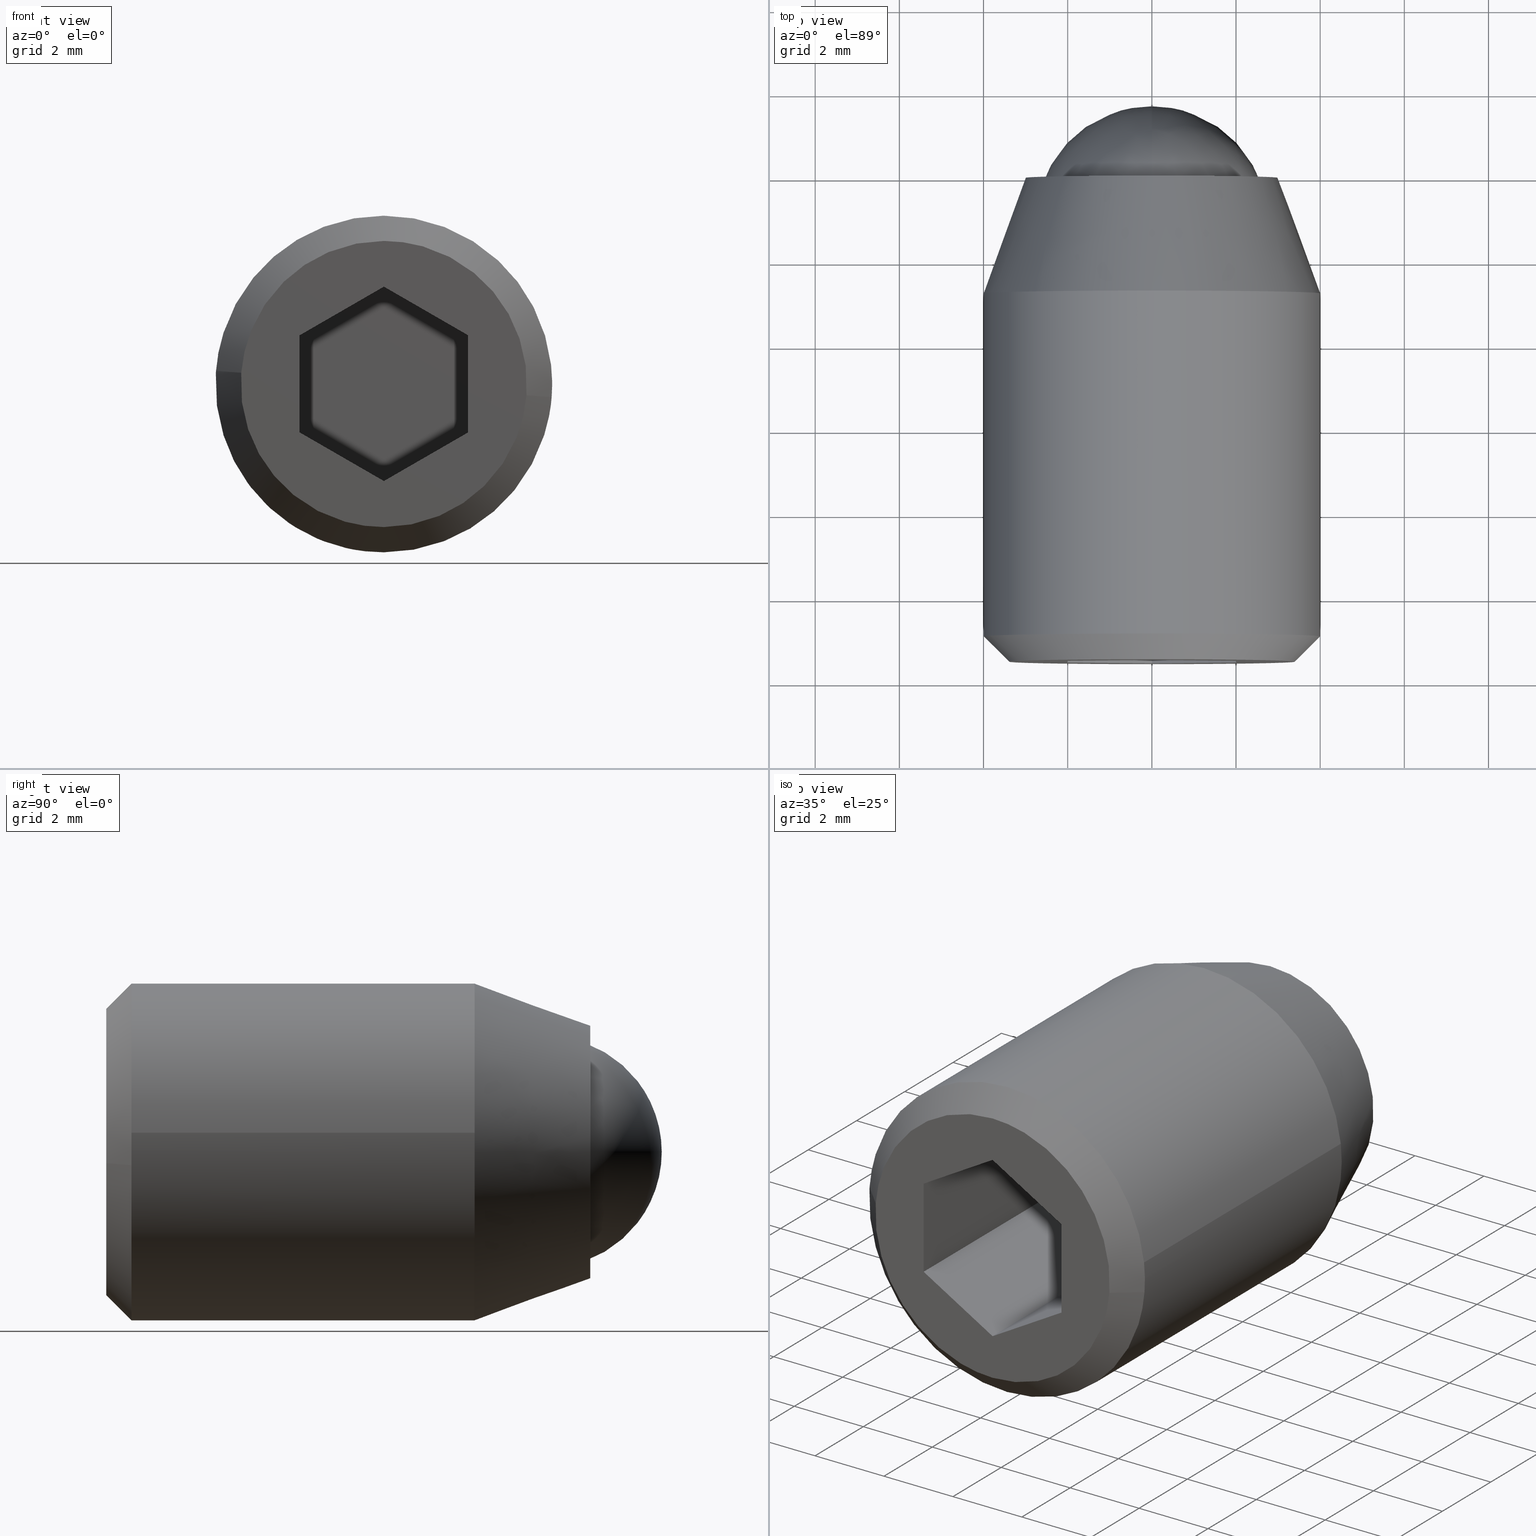
[diagram: canonical four-view strip — front | top / right | iso, engineering-drawing reading convention]
A machine part, canonical four-view strip (front | top / right | iso — engineering-drawing reading convention). The complete STEP part file that produces these views, byte-faithful:
ISO-10303-21;
HEADER;
/****************************************************************
 * Generated by software with PDE/Lib inside                    *
 * PDElib Version 4.4.1-0003, patched  Thursday August 19 11:58 *
 * International Technegroup Inc. (www.iti-oh.com)              *
 ****************************************************************/
FILE_DESCRIPTION((''),'2;1');
FILE_NAME('','2005-07-15T11:51:13',(''),(''),'','CADfix','');
FILE_SCHEMA(('AUTOMOTIVE_DESIGN'));
ENDSEC;
DATA;
#5=APPLICATION_CONTEXT('automotive design');
#6=APPLICATION_PROTOCOL_DEFINITION('Draft International Standard','automotive_design',1998,#5);
#7=PRODUCT_CONTEXT('None',#5,'mechanical');
#8=PRODUCT('body','','None',(#7));
#9=PRODUCT_RELATED_PRODUCT_CATEGORY('part','description',(#8));
#10=PRODUCT_DEFINITION_FORMATION('None','None',#8);
#11=PRODUCT_DEFINITION_CONTEXT('part definition',#5,'design');
#12=PRODUCT_DEFINITION('None','None',#10,#11);
#18=(NAMED_UNIT(*)PLANE_ANGLE_UNIT()SI_UNIT($,.RADIAN.));
#19=DIMENSIONAL_EXPONENTS(0.0,0.0,0.0,0.0,0.0,0.0,0.0);
#20=PLANE_ANGLE_MEASURE_WITH_UNIT(PLANE_ANGLE_MEASURE(0.017453292500000),#18);
#24=(CONVERSION_BASED_UNIT('DEGREE',#20)NAMED_UNIT(#19)PLANE_ANGLE_UNIT());
#28=(NAMED_UNIT(*)SI_UNIT($,.STERADIAN.)SOLID_ANGLE_UNIT());
#32=(LENGTH_UNIT()NAMED_UNIT(*)SI_UNIT(.MILLI.,.METRE.));
#34=UNCERTAINTY_MEASURE_WITH_UNIT(LENGTH_MEASURE(0.001000000000000),#32,'DISTANCE_ACCURACY_VALUE','');
#36=(GEOMETRIC_REPRESENTATION_CONTEXT(3)GLOBAL_UNCERTAINTY_ASSIGNED_CONTEXT((#34))GLOBAL_UNIT_ASSIGNED_CONTEXT((#24,#28,#32))REPRESENTATION_CONTEXT('None','None'));
#37=AXIS2_PLACEMENT_3D('',#38,#39,#40);
#38=CARTESIAN_POINT('',(0.0,0.0,0.0));
#39=DIRECTION('',(0.0,0.0,1.0));
#40=DIRECTION('',(1.0,0.0,0.0));
#41=ADVANCED_BREP_SHAPE_REPRESENTATION('',(#37,#945,#1156),#36);
#42=PRODUCT_DEFINITION_SHAPE('','',#12);
#43=SHAPE_DEFINITION_REPRESENTATION(#42,#41);
#44=CARTESIAN_POINT('',(-2.730776197500084,0.125000000000000,0.324594145306086));
#45=CARTESIAN_POINT('',(-2.740065942483665,0.125000000000000,0.246440503754439));
#46=CARTESIAN_POINT('',(-2.744870695660134,0.125000000000000,0.167883483720857));
#47=CARTESIAN_POINT('',(-2.912754179380990,0.125000000000000,-2.576987211939278));
#48=CARTESIAN_POINT('',(-0.167883483720857,0.125000000000000,-2.744870695660134));
#49=CARTESIAN_POINT('',(2.576987211939278,0.125000000000000,-2.912754179380990));
#50=CARTESIAN_POINT('',(2.744870695660134,0.125000000000000,-0.167883483720857));
#51=CARTESIAN_POINT('',(-2.730776197500084,-5.128125000000002,0.324594145306086));
#52=CARTESIAN_POINT('',(-2.740065942483665,-5.128125000000001,0.246440503754439));
#53=CARTESIAN_POINT('',(-2.744870695660134,-5.128125000000001,0.167883483720857));
#54=CARTESIAN_POINT('',(-2.912754179380990,-5.128125000000001,-2.576987211939278));
#55=CARTESIAN_POINT('',(-0.167883483720857,-5.128125000000001,-2.744870695660134));
#56=CARTESIAN_POINT('',(2.576987211939278,-5.128125000000001,-2.912754179380990));
#57=CARTESIAN_POINT('',(2.744870695660134,-5.128125000000001,-0.167883483720857));
#65=(BOUNDED_SURFACE()B_SPLINE_SURFACE(2,1,((#44,#51),(#45,#52),(#46,#53),(#47,#54),(#48,#55),(#49,#56),(#50,#57)),.UNSPECIFIED.,.F.,.F.,.U.)B_SPLINE_SURFACE_WITH_KNOTS((3,2,2,3),(2,2),(0.0,0.182253967444162,4.738603153548208,9.294952339652255),(0.0,5.253125000000002),.UNSPECIFIED.)GEOMETRIC_REPRESENTATION_ITEM()RATIONAL_B_SPLINE_SURFACE(((0.977505800795127,0.977505800795127),(0.988284271247462,0.988284271247462),(1.0,1.0),(0.707106781186548,0.707106781186548),(1.0,1.0),(0.707106781186548,0.707106781186548),(1.0,1.0)))REPRESENTATION_ITEM('')SURFACE());
#66=CARTESIAN_POINT('',(-2.730776568017603,-5.000000000000011,0.324591028151036));
#67=VERTEX_POINT('',#66);
#68=CARTESIAN_POINT('',(0.0,-5.0,-2.750000000000000));
#69=VERTEX_POINT('',#68);
#70=CARTESIAN_POINT('',(-2.730776568017603,-5.000000000000011,0.324591028151036));
#71=CARTESIAN_POINT('',(-2.750000000000000,-5.000000000000001,0.162864753988412));
#72=CARTESIAN_POINT('',(-2.750000000000000,-5.0,0.0));
#73=CARTESIAN_POINT('',(-2.750000000000000,-5.000000000000001,-2.750000000000000));
#74=CARTESIAN_POINT('',(0.0,-5.0,-2.750000000000000));
#82=(BOUNDED_CURVE()B_SPLINE_CURVE(2,(#70,#71,#72,#73,#74),.UNSPECIFIED.,.F.,.U.)B_SPLINE_CURVE_WITH_KNOTS((3,2,3),(0.229562666431259,0.250000000000000,0.500000000000000),.UNSPECIFIED.)CURVE()GEOMETRIC_REPRESENTATION_ITEM()RATIONAL_B_SPLINE_CURVE((0.956027132310733,0.976056174348348,1.0,0.707106781186548,1.0))REPRESENTATION_ITEM(''));
#83=EDGE_CURVE('',#67,#69,#82,.T.);
#84=ORIENTED_EDGE('',*,*,#83,.T.);
#85=CARTESIAN_POINT('',(2.744870917171039,-5.000000000000011,-0.167879861971139));
#86=VERTEX_POINT('',#85);
#87=CARTESIAN_POINT('',(0.0,-5.0,-2.750000000000000));
#88=CARTESIAN_POINT('',(2.586945103739577,-5.0,-2.750000000000000));
#89=CARTESIAN_POINT('',(2.744870917171040,-5.000000000000011,-0.167879861971139));
#97=(BOUNDED_CURVE()B_SPLINE_CURVE(2,(#87,#88,#89),.UNSPECIFIED.,.F.,.U.)B_SPLINE_CURVE_WITH_KNOTS((3,3),(0.500000000000000,0.739333189910759),.UNSPECIFIED.)CURVE()GEOMETRIC_REPRESENTATION_ITEM()RATIONAL_B_SPLINE_CURVE((1.0,0.719603726552585,0.976072529611245))REPRESENTATION_ITEM(''));
#98=EDGE_CURVE('',#69,#86,#97,.T.);
#99=ORIENTED_EDGE('',*,*,#98,.T.);
#100=CARTESIAN_POINT('',(2.744870914436455,-1.110223E-016,-0.167879906683121));
#101=VERTEX_POINT('',#100);
#102=CARTESIAN_POINT('',(2.744870914436455,-1.110223E-016,-0.167879906683121));
#103=CARTESIAN_POINT('',(2.744870917171039,-5.000000000000011,-0.167879861971139));
#104=QUASI_UNIFORM_CURVE('',1,(#102,#103),.UNSPECIFIED.,.F.,.U.);
#105=EDGE_CURVE('',#101,#86,#104,.T.);
#106=ORIENTED_EDGE('',*,*,#105,.F.);
#107=CARTESIAN_POINT('',(0.0,0.0,-2.750000000000000));
#108=VERTEX_POINT('',#107);
#109=CARTESIAN_POINT('',(0.0,0.0,-2.750000000000000));
#110=CARTESIAN_POINT('',(2.586945061521356,0.0,-2.750000000000000));
#111=CARTESIAN_POINT('',(2.744870914436455,-1.110223E-016,-0.167879906683121));
#119=(BOUNDED_CURVE()B_SPLINE_CURVE(2,(#109,#110,#111),.UNSPECIFIED.,.F.,.U.)B_SPLINE_CURVE_WITH_KNOTS((3,3),(0.500000000000000,0.739333187100095),.UNSPECIFIED.)CURVE()GEOMETRIC_REPRESENTATION_ITEM()RATIONAL_B_SPLINE_CURVE((1.0,0.719603729845484,0.976072523587444))REPRESENTATION_ITEM(''));
#120=EDGE_CURVE('',#108,#101,#119,.T.);
#121=ORIENTED_EDGE('',*,*,#120,.F.);
#122=CARTESIAN_POINT('',(-2.730776563443044,-1.135771E-016,0.324591066637066));
#123=VERTEX_POINT('',#122);
#124=CARTESIAN_POINT('',(-2.730776563443043,-1.135771E-016,0.324591066637066));
#125=CARTESIAN_POINT('',(-2.750000000000000,0.0,0.162864773434855));
#126=CARTESIAN_POINT('',(-2.750000000000000,0.0,0.0));
#127=CARTESIAN_POINT('',(-2.750000000000000,0.0,-2.750000000000000));
#128=CARTESIAN_POINT('',(0.0,0.0,-2.750000000000000));
#136=(BOUNDED_CURVE()B_SPLINE_CURVE(2,(#124,#125,#126,#127,#128),.UNSPECIFIED.,.F.,.U.)B_SPLINE_CURVE_WITH_KNOTS((3,2,3),(0.229562664049421,0.250000000000000,0.500000000000000),.UNSPECIFIED.)CURVE()GEOMETRIC_REPRESENTATION_ITEM()RATIONAL_B_SPLINE_CURVE((0.956027127642226,0.976056171557852,1.0,0.707106781186548,1.0))REPRESENTATION_ITEM(''));
#137=EDGE_CURVE('',#123,#108,#136,.T.);
#138=ORIENTED_EDGE('',*,*,#137,.F.);
#139=CARTESIAN_POINT('',(-2.730776563443044,-1.135771E-016,0.324591066637066));
#140=CARTESIAN_POINT('',(-2.730776568017603,-5.000000000000011,0.324591028151036));
#141=QUASI_UNIFORM_CURVE('',1,(#139,#140),.UNSPECIFIED.,.F.,.U.);
#142=EDGE_CURVE('',#123,#67,#141,.T.);
#143=ORIENTED_EDGE('',*,*,#142,.T.);
#144=EDGE_LOOP('',(#84,#99,#106,#121,#138,#143));
#145=FACE_OUTER_BOUND('',#144,.T.);
#146=ADVANCED_FACE('',(#145),#65,.F.);
#147=CARTESIAN_POINT('',(2.744870695660134,0.125000000000000,-0.167883483720857));
#148=CARTESIAN_POINT('',(2.912754179380990,0.125000000000000,2.576987211939278));
#149=CARTESIAN_POINT('',(0.167883483720857,0.125000000000000,2.744870695660134));
#150=CARTESIAN_POINT('',(-2.424244599808628,0.125000000000000,2.903412041014450));
#151=CARTESIAN_POINT('',(-2.730776197500084,0.125000000000000,0.324594145306086));
#152=CARTESIAN_POINT('',(2.744870695660134,-5.128125000000001,-0.167883483720857));
#153=CARTESIAN_POINT('',(2.912754179380990,-5.128125000000001,2.576987211939278));
#154=CARTESIAN_POINT('',(0.167883483720857,-5.128125000000001,2.744870695660134));
#155=CARTESIAN_POINT('',(-2.424244599808628,-5.128125000000000,2.903412041014450));
#156=CARTESIAN_POINT('',(-2.730776197500084,-5.128125000000002,0.324594145306086));
#164=(BOUNDED_SURFACE()B_SPLINE_SURFACE(2,1,((#147,#152),(#148,#153),(#149,#154),(#150,#155),(#151,#156)),.UNSPECIFIED.,.F.,.F.,.U.)B_SPLINE_SURFACE_WITH_KNOTS((3,2,3),(2,2),(0.0,4.556349186104046,8.930444404763930),(0.0,5.253125000000002),.UNSPECIFIED.)GEOMETRIC_REPRESENTATION_ITEM()RATIONAL_B_SPLINE_SURFACE(((1.0,1.0),(0.707106781186548,0.707106781186548),(1.0,1.0),(0.718822509939086,0.718822509939086),(0.977505800795127,0.977505800795127)))REPRESENTATION_ITEM('')SURFACE());
#165=CARTESIAN_POINT('',(0.0,-5.0,2.750000000000000));
#166=VERTEX_POINT('',#165);
#167=CARTESIAN_POINT('',(0.0,-5.0,2.750000000000000));
#168=CARTESIAN_POINT('',(-2.442482754062040,-4.999999999999999,2.750000000000000));
#169=CARTESIAN_POINT('',(-2.730776568017603,-5.000000000000011,0.324591028151036));
#177=(BOUNDED_CURVE()B_SPLINE_CURVE(2,(#167,#168,#169),.UNSPECIFIED.,.F.,.U.)B_SPLINE_CURVE_WITH_KNOTS((3,3),(0.0,0.229562666431259),.UNSPECIFIED.)CURVE()GEOMETRIC_REPRESENTATION_ITEM()RATIONAL_B_SPLINE_CURVE((1.0,0.731050606838199,0.956027132310733))REPRESENTATION_ITEM(''));
#178=EDGE_CURVE('',#166,#67,#177,.T.);
#179=ORIENTED_EDGE('',*,*,#178,.T.);
#180=ORIENTED_EDGE('',*,*,#142,.F.);
#181=CARTESIAN_POINT('',(0.0,0.0,2.750000000000000));
#182=VERTEX_POINT('',#181);
#183=CARTESIAN_POINT('',(0.0,0.0,2.750000000000000));
#184=CARTESIAN_POINT('',(-2.442482719396744,0.0,2.750000000000000));
#185=CARTESIAN_POINT('',(-2.730776563443043,-1.135771E-016,0.324591066637066));
#193=(BOUNDED_CURVE()B_SPLINE_CURVE(2,(#183,#184,#185),.UNSPECIFIED.,.F.,.U.)B_SPLINE_CURVE_WITH_KNOTS((3,3),(0.0,0.229562664049421),.UNSPECIFIED.)CURVE()GEOMETRIC_REPRESENTATION_ITEM()RATIONAL_B_SPLINE_CURVE((1.0,0.731050609628695,0.956027127642226))REPRESENTATION_ITEM(''));
#194=EDGE_CURVE('',#182,#123,#193,.T.);
#195=ORIENTED_EDGE('',*,*,#194,.F.);
#196=CARTESIAN_POINT('',(2.744870914436455,-1.110223E-016,-0.167879906683121));
#197=CARTESIAN_POINT('',(2.750000000000000,0.0,-0.084018305537598));
#198=CARTESIAN_POINT('',(2.750000000000000,0.0,0.0));
#199=CARTESIAN_POINT('',(2.750000000000000,0.0,2.750000000000000));
#200=CARTESIAN_POINT('',(0.0,0.0,2.750000000000000));
#208=(BOUNDED_CURVE()B_SPLINE_CURVE(2,(#196,#197,#198,#199,#200),.UNSPECIFIED.,.F.,.U.)B_SPLINE_CURVE_WITH_KNOTS((3,2,3),(0.739333187100095,0.750000000000000,1.0),.UNSPECIFIED.)CURVE()GEOMETRIC_REPRESENTATION_ITEM()RATIONAL_B_SPLINE_CURVE((0.976072523587444,0.987503051341063,1.0,0.707106781186548,1.0))REPRESENTATION_ITEM(''));
#209=EDGE_CURVE('',#101,#182,#208,.T.);
#210=ORIENTED_EDGE('',*,*,#209,.F.);
#211=ORIENTED_EDGE('',*,*,#105,.T.);
#212=CARTESIAN_POINT('',(2.744870917171040,-5.000000000000011,-0.167879861971139));
#213=CARTESIAN_POINT('',(2.750000000000000,-4.999999999999999,-0.084018283118927));
#214=CARTESIAN_POINT('',(2.750000000000000,-5.0,0.0));
#215=CARTESIAN_POINT('',(2.750000000000000,-5.000000000000001,2.750000000000000));
#216=CARTESIAN_POINT('',(0.0,-5.0,2.750000000000000));
#224=(BOUNDED_CURVE()B_SPLINE_CURVE(2,(#212,#213,#214,#215,#216),.UNSPECIFIED.,.F.,.U.)B_SPLINE_CURVE_WITH_KNOTS((3,2,3),(0.739333189910759,0.750000000000000,1.0),.UNSPECIFIED.)CURVE()GEOMETRIC_REPRESENTATION_ITEM()RATIONAL_B_SPLINE_CURVE((0.976072529611245,0.987503054633962,1.0,0.707106781186548,1.0))REPRESENTATION_ITEM(''));
#225=EDGE_CURVE('',#86,#166,#224,.T.);
#226=ORIENTED_EDGE('',*,*,#225,.T.);
#227=EDGE_LOOP('',(#179,#180,#195,#210,#211,#226));
#228=FACE_OUTER_BOUND('',#227,.T.);
#229=ADVANCED_FACE('',(#228),#164,.F.);
#230=CARTESIAN_POINT('',(-2.412646379587942,0.068686925000000,-1.740621281916663));
#231=CARTESIAN_POINT('',(-1.588163700979914,0.068686925000000,-2.883423090812313));
#232=CARTESIAN_POINT('',(-0.181619405116200,0.068686925000000,-2.969451025305056));
#233=CARTESIAN_POINT('',(2.787831620188855,0.068686925000000,-3.151070430421255));
#234=CARTESIAN_POINT('',(2.969451025305055,0.068686925000000,-0.181619405116200));
#235=CARTESIAN_POINT('',(3.151070430421255,0.068686925000000,2.787831620188855));
#236=CARTESIAN_POINT('',(0.181619405116200,0.068686925000000,2.969451025305054));
#237=CARTESIAN_POINT('',(-2.787831620188855,0.068686925000000,3.151070430421254));
#238=CARTESIAN_POINT('',(-2.969451025305055,0.068686925000000,0.181619405116199));
#239=CARTESIAN_POINT('',(-3.264675489690320,-2.817881098125001,-2.355323881685970));
#240=CARTESIAN_POINT('',(-2.149025713867987,-2.817881098125001,-3.901707589899600));
#241=CARTESIAN_POINT('',(-0.245758526965009,-2.817881098125001,-4.018116397897028));
#242=CARTESIAN_POINT('',(3.772357870932019,-2.817881098125000,-4.263874924862038));
#243=CARTESIAN_POINT('',(4.018116397897027,-2.817881098125001,-0.245758526965009));
#244=CARTESIAN_POINT('',(4.263874924862037,-2.817881098125000,3.772357870932019));
#245=CARTESIAN_POINT('',(0.245758526965009,-2.817881098125001,4.018116397897027));
#246=CARTESIAN_POINT('',(-3.772357870932019,-2.817881098125000,4.263874924862035));
#247=CARTESIAN_POINT('',(-4.018116397897027,-2.817881098125001,0.245758526965008));
#255=(BOUNDED_SURFACE()B_SPLINE_SURFACE(2,1,((#230,#239),(#231,#240),(#232,#241),(#233,#242),(#234,#243),(#235,#244),(#236,#245),(#237,#246),(#238,#247)),.UNSPECIFIED.,.F.,.F.,.U.)B_SPLINE_SURFACE_WITH_KNOTS((3,2,2,2,3),(2,2),(0.0,3.735129377343146,10.405003265455910,17.074877153568671,23.744751041681429),(0.0,3.071821583808665),.UNSPECIFIED.)GEOMETRIC_REPRESENTATION_ITEM()RATIONAL_B_SPLINE_SURFACE(((0.855662221768731,0.855662221768731),(0.835979797464467,0.835979797464467),(1.0,1.0),(0.707106781186548,0.707106781186548),(1.0,1.0),(0.707106781186548,0.707106781186548),(1.0,1.0),(0.707106781186548,0.707106781186548),(1.0,1.0)))REPRESENTATION_ITEM('')SURFACE());
#256=CARTESIAN_POINT('',(-2.432920718911475,-1.346725E-013,-1.755248351513702));
#257=VERTEX_POINT('',#256);
#258=CARTESIAN_POINT('',(0.0,0.0,-3.000000000000001));
#259=VERTEX_POINT('',#258);
#260=CARTESIAN_POINT('',(-2.432920718911476,-1.346725E-013,-1.755248351513702));
#261=CARTESIAN_POINT('',(-1.534885586870984,0.0,-3.000000000000001));
#262=CARTESIAN_POINT('',(0.0,0.0,-3.000000000000001));
#270=(BOUNDED_CURVE()B_SPLINE_CURVE(2,(#260,#261,#262),.UNSPECIFIED.,.F.,.U.)B_SPLINE_CURVE_WITH_KNOTS((3,3),(0.850743050382132,1.0),.UNSPECIFIED.)CURVE()GEOMETRIC_REPRESENTATION_ITEM()RATIONAL_B_SPLINE_CURVE((0.859068214727284,0.825134606384582,1.0))REPRESENTATION_ITEM(''));
#271=EDGE_CURVE('',#257,#259,#270,.T.);
#272=ORIENTED_EDGE('',*,*,#271,.T.);
#273=CARTESIAN_POINT('',(0.0,0.0,2.999999999999999));
#274=VERTEX_POINT('',#273);
#275=CARTESIAN_POINT('',(0.0,0.0,-3.000000000000001));
#276=CARTESIAN_POINT('',(3.0,0.0,-3.0));
#277=CARTESIAN_POINT('',(3.0,0.0,-6.735335E-016));
#278=CARTESIAN_POINT('',(3.0,0.0,2.999999999999999));
#279=CARTESIAN_POINT('',(0.0,0.0,2.999999999999999));
#287=(BOUNDED_CURVE()B_SPLINE_CURVE(2,(#275,#276,#277,#278,#279),.UNSPECIFIED.,.F.,.U.)B_SPLINE_CURVE_WITH_KNOTS((3,2,3),(0.0,0.250000000000000,0.500000000000000),.UNSPECIFIED.)CURVE()GEOMETRIC_REPRESENTATION_ITEM()RATIONAL_B_SPLINE_CURVE((1.0,0.707106781186548,1.0,0.707106781186548,1.0))REPRESENTATION_ITEM(''));
#288=EDGE_CURVE('',#259,#274,#287,.T.);
#289=ORIENTED_EDGE('',*,*,#288,.T.);
#290=CARTESIAN_POINT('',(-2.994404214793202,0.000000619119789,0.183144878118326));
#291=VERTEX_POINT('',#290);
#292=CARTESIAN_POINT('',(0.0,0.0,2.999999999999999));
#293=CARTESIAN_POINT('',(-2.822119573109875,0.0,3.0));
#294=CARTESIAN_POINT('',(-2.994404214793202,0.000000619119789,0.183144878118326));
#302=(BOUNDED_CURVE()B_SPLINE_CURVE(2,(#292,#293,#294),.UNSPECIFIED.,.F.,.U.)B_SPLINE_CURVE_WITH_KNOTS((3,3),(0.500000000000000,0.739333045994752),.UNSPECIFIED.)CURVE()GEOMETRIC_REPRESENTATION_ITEM()RATIONAL_B_SPLINE_CURVE((1.0,0.719603895160676,0.976072221171425))REPRESENTATION_ITEM(''));
#303=EDGE_CURVE('',#274,#291,#302,.T.);
#304=ORIENTED_EDGE('',*,*,#303,.T.);
#305=CARTESIAN_POINT('',(-3.992539304152811,-2.747476998073565,0.244192340534479));
#306=VERTEX_POINT('',#305);
#307=CARTESIAN_POINT('',(-2.994404214793202,0.000000619119789,0.183144878118326));
#308=CARTESIAN_POINT('',(-3.992539304152811,-2.747476998073565,0.244192340534479));
#309=QUASI_UNIFORM_CURVE('',1,(#307,#308),.UNSPECIFIED.,.F.,.U.);
#310=EDGE_CURVE('',#291,#306,#309,.T.);
#311=ORIENTED_EDGE('',*,*,#310,.T.);
#312=CARTESIAN_POINT('',(0.0,-2.747477000000000,3.999999999999999));
#313=VERTEX_POINT('',#312);
#314=CARTESIAN_POINT('',(0.0,-2.747477000000000,3.999999999999999));
#315=CARTESIAN_POINT('',(-3.762825983810888,-2.747477000000000,3.999999999999999));
#316=CARTESIAN_POINT('',(-3.992539304152811,-2.747476998073565,0.244192340534479));
#324=(BOUNDED_CURVE()B_SPLINE_CURVE(2,(#314,#315,#316),.UNSPECIFIED.,.F.,.U.)B_SPLINE_CURVE_WITH_KNOTS((3,3),(0.500000000000000,0.739333040792111),.UNSPECIFIED.)CURVE()GEOMETRIC_REPRESENTATION_ITEM()RATIONAL_B_SPLINE_CURVE((1.0,0.719603901255949,0.976072210021168))REPRESENTATION_ITEM(''));
#325=EDGE_CURVE('',#313,#306,#324,.T.);
#326=ORIENTED_EDGE('',*,*,#325,.F.);
#327=CARTESIAN_POINT('',(3.973876911369272,-2.747477000000000,0.456401460651424));
#328=VERTEX_POINT('',#327);
#329=CARTESIAN_POINT('',(3.973876911369273,-2.747477000000000,0.456401460651424));
#330=CARTESIAN_POINT('',(3.566893105531425,-2.747476999999999,4.0));
#331=CARTESIAN_POINT('',(0.0,-2.747477000000000,3.999999999999999));
#339=(BOUNDED_CURVE()B_SPLINE_CURVE(2,(#329,#330,#331),.UNSPECIFIED.,.F.,.U.)B_SPLINE_CURVE_WITH_KNOTS((3,3),(0.269767704844007,0.500000000000000),.UNSPECIFIED.)CURVE()GEOMETRIC_REPRESENTATION_ITEM()RATIONAL_B_SPLINE_CURVE((0.957343837127389,0.730266087987810,1.0))REPRESENTATION_ITEM(''));
#340=EDGE_CURVE('',#328,#313,#339,.T.);
#341=ORIENTED_EDGE('',*,*,#340,.F.);
#342=CARTESIAN_POINT('',(0.0,-2.747477000000000,-4.000000000000001));
#343=VERTEX_POINT('',#342);
#344=CARTESIAN_POINT('',(0.0,-2.747477000000000,-4.000000000000001));
#345=CARTESIAN_POINT('',(4.000000000000000,-2.747477000000000,-4.000000000000001));
#346=CARTESIAN_POINT('',(4.0,-2.747477000000000,-6.735335E-016));
#347=CARTESIAN_POINT('',(4.0,-2.747477000000000,0.228948335031703));
#348=CARTESIAN_POINT('',(3.973876911369273,-2.747477000000000,0.456401460651424));
#356=(BOUNDED_CURVE()B_SPLINE_CURVE(2,(#344,#345,#346,#347,#348),.UNSPECIFIED.,.F.,.U.)B_SPLINE_CURVE_WITH_KNOTS((3,2,3),(0.0,0.250000000000000,0.269767704844007),.UNSPECIFIED.)CURVE()GEOMETRIC_REPRESENTATION_ITEM()RATIONAL_B_SPLINE_CURVE((1.0,0.707106781186548,1.0,0.976840693198738,0.957343837127389))REPRESENTATION_ITEM(''));
#357=EDGE_CURVE('',#343,#328,#356,.T.);
#358=ORIENTED_EDGE('',*,*,#357,.F.);
#359=CARTESIAN_POINT('',(-3.243894291882399,-2.747477000000100,-2.340331135350953));
#360=VERTEX_POINT('',#359);
#361=CARTESIAN_POINT('',(-3.243894291882400,-2.747477000000101,-2.340331135350953));
#362=CARTESIAN_POINT('',(-2.046514115828961,-2.747477000000000,-4.000000000000002));
#363=CARTESIAN_POINT('',(0.0,-2.747477000000000,-4.000000000000001));
#371=(BOUNDED_CURVE()B_SPLINE_CURVE(2,(#361,#362,#363),.UNSPECIFIED.,.F.,.U.)B_SPLINE_CURVE_WITH_KNOTS((3,3),(0.850743050382073,1.0),.UNSPECIFIED.)CURVE()GEOMETRIC_REPRESENTATION_ITEM()RATIONAL_B_SPLINE_CURVE((0.859068214727311,0.825134606384512,1.0))REPRESENTATION_ITEM(''));
#372=EDGE_CURVE('',#360,#343,#371,.T.);
#373=ORIENTED_EDGE('',*,*,#372,.F.);
#374=CARTESIAN_POINT('',(-2.432920718911475,-1.346725E-013,-1.755248351513702));
#375=CARTESIAN_POINT('',(-3.243894291882399,-2.747477000000100,-2.340331135350953));
#376=QUASI_UNIFORM_CURVE('',1,(#374,#375),.UNSPECIFIED.,.F.,.U.);
#377=EDGE_CURVE('',#257,#360,#376,.T.);
#378=ORIENTED_EDGE('',*,*,#377,.F.);
#379=EDGE_LOOP('',(#272,#289,#304,#311,#326,#341,#358,#373,#378));
#380=FACE_OUTER_BOUND('',#379,.T.);
#381=ADVANCED_FACE('',(#380),#255,.T.);
#382=CARTESIAN_POINT('',(-2.969451025305055,0.068686925000000,0.181619405116199));
#383=CARTESIAN_POINT('',(-3.034317225933767,0.068686925000000,-0.878933600446937));
#384=CARTESIAN_POINT('',(-2.412646379587942,0.068686925000000,-1.740621281916663));
#385=CARTESIAN_POINT('',(-4.018116397897027,-2.817881098125001,0.245758526965008));
#386=CARTESIAN_POINT('',(-4.105890179041889,-2.817881098125000,-1.189330109344269));
#387=CARTESIAN_POINT('',(-3.264675489690320,-2.817881098125001,-2.355323881685970));
#395=(BOUNDED_SURFACE()B_SPLINE_SURFACE(2,1,((#382,#385),(#383,#386),(#384,#387)),.UNSPECIFIED.,.F.,.F.,.U.)B_SPLINE_SURFACE_WITH_KNOTS((3,3),(2,2),(0.0,2.927511655842914),(0.0,3.071821583808665),.UNSPECIFIED.)GEOMETRIC_REPRESENTATION_ITEM()RATIONAL_B_SPLINE_SURFACE(((1.0,1.0),(0.871126983722081,0.871126983722081),(0.855662221768731,0.855662221768731)))REPRESENTATION_ITEM('')SURFACE());
#396=CARTESIAN_POINT('',(-2.994404214793203,0.000000619119789,0.183144878118326));
#397=CARTESIAN_POINT('',(-3.000000000000000,0.0,0.091657561128611));
#398=CARTESIAN_POINT('',(-3.0,0.0,-6.735335E-016));
#399=CARTESIAN_POINT('',(-3.0,0.0,-0.969229136036448));
#400=CARTESIAN_POINT('',(-2.432920718911476,-1.346725E-013,-1.755248351513703));
#408=(BOUNDED_CURVE()B_SPLINE_CURVE(2,(#396,#397,#398,#399,#400),.UNSPECIFIED.,.F.,.U.)B_SPLINE_CURVE_WITH_KNOTS((3,2,3),(0.739333045994751,0.750000000000000,0.850743050382133),.UNSPECIFIED.)CURVE()GEOMETRIC_REPRESENTATION_ITEM()RATIONAL_B_SPLINE_CURVE((0.976072221171424,0.987502886025871,1.0,0.881972174801965,0.859068214727284))REPRESENTATION_ITEM(''));
#409=EDGE_CURVE('',#291,#257,#408,.T.);
#410=ORIENTED_EDGE('',*,*,#409,.T.);
#411=ORIENTED_EDGE('',*,*,#377,.T.);
#412=CARTESIAN_POINT('',(-3.992539304152811,-2.747476998073565,0.244192340534479));
#413=CARTESIAN_POINT('',(-4.000000000000001,-2.747477000000000,0.122210141865207));
#414=CARTESIAN_POINT('',(-4.0,-2.747477000000000,-6.735335E-016));
#415=CARTESIAN_POINT('',(-4.000000000000001,-2.747477000000001,-1.292305514714377));
#416=CARTESIAN_POINT('',(-3.243894291882399,-2.747477000000101,-2.340331135350953));
#424=(BOUNDED_CURVE()B_SPLINE_CURVE(2,(#412,#413,#414,#415,#416),.UNSPECIFIED.,.F.,.U.)B_SPLINE_CURVE_WITH_KNOTS((3,2,3),(0.739333040792111,0.750000000000000,0.850743050382072),.UNSPECIFIED.)CURVE()GEOMETRIC_REPRESENTATION_ITEM()RATIONAL_B_SPLINE_CURVE((0.976072210021168,0.987502879930598,1.0,0.881972174802036,0.859068214727311))REPRESENTATION_ITEM(''));
#425=EDGE_CURVE('',#306,#360,#424,.T.);
#426=ORIENTED_EDGE('',*,*,#425,.F.);
#427=ORIENTED_EDGE('',*,*,#310,.F.);
#428=EDGE_LOOP('',(#410,#411,#426,#427));
#429=FACE_OUTER_BOUND('',#428,.T.);
#430=ADVANCED_FACE('',(#429),#395,.T.);
#431=CARTESIAN_POINT('',(3.973876773742854,-2.543663924999999,0.456402658961441));
#432=CARTESIAN_POINT('',(3.591260610344325,-2.543663924999998,3.787823839652829));
#433=CARTESIAN_POINT('',(0.244194158139428,-2.543663924999999,3.992539193687466));
#434=CARTESIAN_POINT('',(-3.748345035548039,-2.543663924999999,4.236733351826894));
#435=CARTESIAN_POINT('',(-3.992539193687467,-2.543663924999999,0.244194158139427));
#436=CARTESIAN_POINT('',(3.973876773742854,-11.108908401875002,0.456402658961441));
#437=CARTESIAN_POINT('',(3.591260610344325,-11.108908401875000,3.787823839652829));
#438=CARTESIAN_POINT('',(0.244194158139428,-11.108908401875000,3.992539193687466));
#439=CARTESIAN_POINT('',(-3.748345035548039,-11.108908401875002,4.236733351826894));
#440=CARTESIAN_POINT('',(-3.992539193687467,-11.108908401875000,0.244194158139427));
#448=(BOUNDED_SURFACE()B_SPLINE_SURFACE(2,1,((#431,#436),(#432,#437),(#433,#438),(#434,#439),(#435,#440)),.UNSPECIFIED.,.F.,.F.,.U.)B_SPLINE_SURFACE_WITH_KNOTS((3,2,3),(2,2),(0.0,5.832126958213176,12.459543956182699),(0.0,8.565244476875003),.UNSPECIFIED.)GEOMETRIC_REPRESENTATION_ITEM()RATIONAL_B_SPLINE_SURFACE(((0.938140952186599,0.938140952186599),(0.742253967444162,0.742253967444162),(1.0,1.0),(0.707106781186548,0.707106781186548),(1.0,1.0)))REPRESENTATION_ITEM('')SURFACE());
#449=CARTESIAN_POINT('',(3.973876773742199,-10.900000000000000,0.456402658967154));
#450=VERTEX_POINT('',#449);
#451=CARTESIAN_POINT('',(0.0,-10.900000000000000,3.999999999999999));
#452=VERTEX_POINT('',#451);
#453=CARTESIAN_POINT('',(3.973876773742199,-10.899999999999997,0.456402658967154));
#454=CARTESIAN_POINT('',(3.566892022865332,-10.900000000000000,4.000000000000000));
#455=CARTESIAN_POINT('',(0.0,-10.900000000000000,3.999999999999999));
#463=(BOUNDED_CURVE()B_SPLINE_CURVE(2,(#453,#454,#455),.UNSPECIFIED.,.F.,.U.)B_SPLINE_CURVE_WITH_KNOTS((3,3),(0.269767755877096,0.500000000000000),.UNSPECIFIED.)CURVE()GEOMETRIC_REPRESENTATION_ITEM()RATIONAL_B_SPLINE_CURVE((0.957343736459704,0.730266147776792,1.0))REPRESENTATION_ITEM(''));
#464=EDGE_CURVE('',#450,#452,#463,.T.);
#465=ORIENTED_EDGE('',*,*,#464,.F.);
#466=CARTESIAN_POINT('',(3.973876911369272,-2.747477000000000,0.456401460651424));
#467=CARTESIAN_POINT('',(3.973876773742199,-10.900000000000000,0.456402658967154));
#468=QUASI_UNIFORM_CURVE('',1,(#466,#467),.UNSPECIFIED.,.F.,.U.);
#469=EDGE_CURVE('',#328,#450,#468,.T.);
#470=ORIENTED_EDGE('',*,*,#469,.F.);
#471=ORIENTED_EDGE('',*,*,#340,.T.);
#472=ORIENTED_EDGE('',*,*,#325,.T.);
#473=CARTESIAN_POINT('',(-3.992539216601213,-10.900000000000000,0.244193783502418));
#474=VERTEX_POINT('',#473);
#475=CARTESIAN_POINT('',(-3.992539304152811,-2.747476998073565,0.244192340534479));
#476=CARTESIAN_POINT('',(-3.992539216601213,-10.900000000000000,0.244193783502418));
#477=QUASI_UNIFORM_CURVE('',1,(#475,#476),.UNSPECIFIED.,.F.,.U.);
#478=EDGE_CURVE('',#306,#474,#477,.T.);
#479=ORIENTED_EDGE('',*,*,#478,.T.);
#480=CARTESIAN_POINT('',(-3.987669334932551,-10.899999999999920,0.313836382912057));
#481=VERTEX_POINT('',#480);
#482=CARTESIAN_POINT('',(-3.987669334932551,-10.899999999999920,0.313836382912057));
#483=CARTESIAN_POINT('',(-3.990408173004920,-10.900000000000002,0.279036145624283));
#484=CARTESIAN_POINT('',(-3.992539216601213,-10.900000000000006,0.244193783502418));
#492=(BOUNDED_CURVE()B_SPLINE_CURVE(2,(#482,#483,#484),.UNSPECIFIED.,.F.,.U.)B_SPLINE_CURVE_WITH_KNOTS((3,3),(0.736331300632709,0.739332994623574),.UNSPECIFIED.)CURVE()GEOMETRIC_REPRESENTATION_ITEM()RATIONAL_B_SPLINE_CURVE((0.969723356171695,0.972855509354259,0.976072111073157))REPRESENTATION_ITEM(''));
#493=EDGE_CURVE('',#481,#474,#492,.T.);
#494=ORIENTED_EDGE('',*,*,#493,.F.);
#495=CARTESIAN_POINT('',(0.0,-10.900000000000000,3.999999999999999));
#496=CARTESIAN_POINT('',(-3.697561966631561,-10.900000000000000,3.999999999999999));
#497=CARTESIAN_POINT('',(-3.987669334932551,-10.899999999999920,0.313836382912057));
#505=(BOUNDED_CURVE()B_SPLINE_CURVE(2,(#495,#496,#497),.UNSPECIFIED.,.F.,.U.)B_SPLINE_CURVE_WITH_KNOTS((3,3),(0.500000000000000,0.736331300632708),.UNSPECIFIED.)CURVE()GEOMETRIC_REPRESENTATION_ITEM()RATIONAL_B_SPLINE_CURVE((1.0,0.723120658605265,0.969723356171693))REPRESENTATION_ITEM(''));
#506=EDGE_CURVE('',#452,#481,#505,.T.);
#507=ORIENTED_EDGE('',*,*,#506,.F.);
#508=EDGE_LOOP('',(#465,#470,#471,#472,#479,#494,#507));
#509=FACE_OUTER_BOUND('',#508,.T.);
#510=ADVANCED_FACE('',(#509),#448,.T.);
#511=CARTESIAN_POINT('',(-3.992539193687467,-2.543663924999999,0.244194158139427));
#512=CARTESIAN_POINT('',(-4.236733351826894,-2.543663924999999,-3.748345035548040));
#513=CARTESIAN_POINT('',(-0.244194158139428,-2.543663924999999,-3.992539193687468));
#514=CARTESIAN_POINT('',(3.748345035548039,-2.543663924999999,-4.236733351826896));
#515=CARTESIAN_POINT('',(3.992539193687467,-2.543663924999999,-0.244194158139429));
#516=CARTESIAN_POINT('',(4.014014553579111,-2.543663924999999,0.106924872386186));
#517=CARTESIAN_POINT('',(3.973876773742854,-2.543663924999999,0.456402658961441));
#518=CARTESIAN_POINT('',(-3.992539193687467,-11.108908401875000,0.244194158139427));
#519=CARTESIAN_POINT('',(-4.236733351826894,-11.108908401875002,-3.748345035548040));
#520=CARTESIAN_POINT('',(-0.244194158139428,-11.108908401875000,-3.992539193687468));
#521=CARTESIAN_POINT('',(3.748345035548039,-11.108908401875002,-4.236733351826896));
#522=CARTESIAN_POINT('',(3.992539193687467,-11.108908401875000,-0.244194158139429));
#523=CARTESIAN_POINT('',(4.014014553579111,-11.108908401874999,0.106924872386186));
#524=CARTESIAN_POINT('',(3.973876773742854,-11.108908401875002,0.456402658961441));
#532=(BOUNDED_SURFACE()B_SPLINE_SURFACE(2,1,((#511,#518),(#512,#519),(#513,#520),(#514,#521),(#515,#522),(#516,#523),(#517,#524)),.UNSPECIFIED.,.F.,.F.,.U.)B_SPLINE_SURFACE_WITH_KNOTS((3,2,2,3),(2,2),(0.0,6.627416997969519,13.254833995939039,14.050124035695379),(0.0,8.565244476875003),.UNSPECIFIED.)GEOMETRIC_REPRESENTATION_ITEM()RATIONAL_B_SPLINE_SURFACE(((1.0,1.0),(0.707106781186548,0.707106781186548),(1.0,1.0),(0.707106781186548,0.707106781186548),(1.0,1.0),(0.964852813742386,0.964852813742386),(0.938140952186599,0.938140952186599)))REPRESENTATION_ITEM('')SURFACE());
#533=CARTESIAN_POINT('',(3.987669334932551,-10.899999999999920,-0.313836382912059));
#534=VERTEX_POINT('',#533);
#535=CARTESIAN_POINT('',(3.987669334932551,-10.899999999999919,-0.313836382912059));
#536=CARTESIAN_POINT('',(4.000000000000001,-10.900000000000000,-0.157160428031352));
#537=CARTESIAN_POINT('',(4.0,-10.900000000000000,-6.735335E-016));
#538=CARTESIAN_POINT('',(4.000000000000000,-10.899999999999997,0.228948940106940));
#539=CARTESIAN_POINT('',(3.973876773742199,-10.899999999999999,0.456402658967154));
#547=(BOUNDED_CURVE()B_SPLINE_CURVE(2,(#535,#536,#537,#538,#539),.UNSPECIFIED.,.F.,.U.)B_SPLINE_CURVE_WITH_KNOTS((3,2,3),(0.236331300632709,0.250000000000000,0.269767755877096),.UNSPECIFIED.)CURVE()GEOMETRIC_REPRESENTATION_ITEM()RATIONAL_B_SPLINE_CURVE((0.969723356171695,0.983986122581283,1.0,0.976840633409755,0.957343736459704))REPRESENTATION_ITEM(''));
#548=EDGE_CURVE('',#534,#450,#547,.T.);
#549=ORIENTED_EDGE('',*,*,#548,.F.);
#550=CARTESIAN_POINT('',(0.0,-10.900000000000000,-4.000000000000001));
#551=VERTEX_POINT('',#550);
#552=CARTESIAN_POINT('',(0.0,-10.900000000000000,-4.000000000000001));
#553=CARTESIAN_POINT('',(3.697561966631584,-10.900000000000004,-4.000000000000001));
#554=CARTESIAN_POINT('',(3.987669334932552,-10.899999999999917,-0.313836382912059));
#562=(BOUNDED_CURVE()B_SPLINE_CURVE(2,(#552,#553,#554),.UNSPECIFIED.,.F.,.U.)B_SPLINE_CURVE_WITH_KNOTS((3,3),(0.0,0.236331300632709),.UNSPECIFIED.)CURVE()GEOMETRIC_REPRESENTATION_ITEM()RATIONAL_B_SPLINE_CURVE((1.0,0.723120658605264,0.969723356171695))REPRESENTATION_ITEM(''));
#563=EDGE_CURVE('',#551,#534,#562,.T.);
#564=ORIENTED_EDGE('',*,*,#563,.F.);
#565=CARTESIAN_POINT('',(-3.992539216601213,-10.899999999999999,0.244193783502418));
#566=CARTESIAN_POINT('',(-4.0,-10.900000000000007,0.122210677506903));
#567=CARTESIAN_POINT('',(-4.0,-10.900000000000000,-6.735335E-016));
#568=CARTESIAN_POINT('',(-4.000000000000000,-10.900000000000000,-4.000000000000001));
#569=CARTESIAN_POINT('',(0.0,-10.900000000000000,-4.000000000000001));
#577=(BOUNDED_CURVE()B_SPLINE_CURVE(2,(#565,#566,#567,#568,#569),.UNSPECIFIED.,.F.,.U.)B_SPLINE_CURVE_WITH_KNOTS((3,2,3),(0.739332994623574,0.750000000000000,1.0),.UNSPECIFIED.)CURVE()GEOMETRIC_REPRESENTATION_ITEM()RATIONAL_B_SPLINE_CURVE((0.976072111073157,0.987502825840793,1.0,0.707106781186548,1.0))REPRESENTATION_ITEM(''));
#578=EDGE_CURVE('',#474,#551,#577,.T.);
#579=ORIENTED_EDGE('',*,*,#578,.F.);
#580=ORIENTED_EDGE('',*,*,#478,.F.);
#581=ORIENTED_EDGE('',*,*,#425,.T.);
#582=ORIENTED_EDGE('',*,*,#372,.T.);
#583=ORIENTED_EDGE('',*,*,#357,.T.);
#584=ORIENTED_EDGE('',*,*,#469,.T.);
#585=EDGE_LOOP('',(#549,#564,#579,#580,#581,#582,#583,#584));
#586=FACE_OUTER_BOUND('',#585,.T.);
#587=ADVANCED_FACE('',(#586),#532,.T.);
#588=CARTESIAN_POINT('',(3.374565174686635,-11.515000000000001,-0.265584039038758));
#589=CARTESIAN_POINT('',(3.108981135647878,-11.515000000000002,-3.640149213725392));
#590=CARTESIAN_POINT('',(-0.265584039038757,-11.515000000000001,-3.374565174686636));
#591=CARTESIAN_POINT('',(-3.640149213725392,-11.515000000000002,-3.108981135647879));
#592=CARTESIAN_POINT('',(-3.374565174686635,-11.515000000000001,0.265584039038756));
#593=CARTESIAN_POINT('',(4.002996938938679,-10.884625000000000,-0.315042691508200));
#594=CARTESIAN_POINT('',(3.687954247430480,-10.884624999999998,-4.318039630446878));
#595=CARTESIAN_POINT('',(-0.315042691508200,-10.884625000000000,-4.002996938938680));
#596=CARTESIAN_POINT('',(-4.318039630446878,-10.884624999999998,-3.687954247430481));
#597=CARTESIAN_POINT('',(-4.002996938938679,-10.884625000000000,0.315042691508199));
#605=(BOUNDED_SURFACE()B_SPLINE_SURFACE(2,1,((#588,#593),(#589,#594),(#590,#595),(#591,#596),(#592,#597)),.UNSPECIFIED.,.F.,.F.,.U.)B_SPLINE_SURFACE_WITH_KNOTS((3,2,3),(2,2),(0.0,6.652891132055502,13.305782264111000),(0.0,1.0),.UNSPECIFIED.)GEOMETRIC_REPRESENTATION_ITEM()RATIONAL_B_SPLINE_SURFACE(((1.0,1.0),(0.707106781186548,0.707106781186548),(1.0,1.0),(0.707106781186548,0.707106781186548),(1.0,1.0)))REPRESENTATION_ITEM('')SURFACE());
#606=ORIENTED_EDGE('',*,*,#563,.T.);
#607=CARTESIAN_POINT('',(3.389518934692640,-11.499999999999989,-0.266760925474770));
#608=VERTEX_POINT('',#607);
#609=CARTESIAN_POINT('',(3.389518934692640,-11.499999999999989,-0.266760925474770));
#610=CARTESIAN_POINT('',(3.987669334932551,-10.899999999999920,-0.313836382912059));
#611=QUASI_UNIFORM_CURVE('',1,(#609,#610),.UNSPECIFIED.,.F.,.U.);
#612=EDGE_CURVE('',#608,#534,#611,.T.);
#613=ORIENTED_EDGE('',*,*,#612,.F.);
#614=CARTESIAN_POINT('',(0.0,-11.500000000000000,-3.400000000000001));
#615=VERTEX_POINT('',#614);
#616=CARTESIAN_POINT('',(0.0,-11.500000000000000,-3.400000000000001));
#617=CARTESIAN_POINT('',(3.142927671637728,-11.499999999999998,-3.400000000000002));
#618=CARTESIAN_POINT('',(3.389518934692640,-11.499999999999993,-0.266760925474770));
#626=(BOUNDED_CURVE()B_SPLINE_CURVE(2,(#616,#617,#618),.UNSPECIFIED.,.F.,.U.)B_SPLINE_CURVE_WITH_KNOTS((3,3),(0.0,0.236331300632757),.UNSPECIFIED.)CURVE()GEOMETRIC_REPRESENTATION_ITEM()RATIONAL_B_SPLINE_CURVE((1.0,0.723120658605208,0.969723356171796))REPRESENTATION_ITEM(''));
#627=EDGE_CURVE('',#615,#608,#626,.T.);
#628=ORIENTED_EDGE('',*,*,#627,.F.);
#629=CARTESIAN_POINT('',(-3.389518934692640,-11.499999999999989,0.266760925474769));
#630=VERTEX_POINT('',#629);
#631=CARTESIAN_POINT('',(-3.389518934692639,-11.499999999999993,0.266760925474769));
#632=CARTESIAN_POINT('',(-3.400000000000000,-11.499999999999995,0.133586363826171));
#633=CARTESIAN_POINT('',(-3.400000000000000,-11.500000000000000,-6.735335E-016));
#634=CARTESIAN_POINT('',(-3.400000000000001,-11.500000000000000,-3.400000000000002));
#635=CARTESIAN_POINT('',(0.0,-11.500000000000000,-3.400000000000001));
#643=(BOUNDED_CURVE()B_SPLINE_CURVE(2,(#631,#632,#633,#634,#635),.UNSPECIFIED.,.F.,.U.)B_SPLINE_CURVE_WITH_KNOTS((3,2,3),(0.736331300632757,0.750000000000000,1.0),.UNSPECIFIED.)CURVE()GEOMETRIC_REPRESENTATION_ITEM()RATIONAL_B_SPLINE_CURVE((0.969723356171796,0.983986122581340,1.0,0.707106781186548,1.0))REPRESENTATION_ITEM(''));
#644=EDGE_CURVE('',#630,#615,#643,.T.);
#645=ORIENTED_EDGE('',*,*,#644,.F.);
#646=CARTESIAN_POINT('',(-3.389518934692640,-11.499999999999989,0.266760925474769));
#647=CARTESIAN_POINT('',(-3.987669334932551,-10.899999999999920,0.313836382912057));
#648=QUASI_UNIFORM_CURVE('',1,(#646,#647),.UNSPECIFIED.,.F.,.U.);
#649=EDGE_CURVE('',#630,#481,#648,.T.);
#650=ORIENTED_EDGE('',*,*,#649,.T.);
#651=ORIENTED_EDGE('',*,*,#493,.T.);
#652=ORIENTED_EDGE('',*,*,#578,.T.);
#653=EDGE_LOOP('',(#606,#613,#628,#645,#650,#651,#652));
#654=FACE_OUTER_BOUND('',#653,.T.);
#655=ADVANCED_FACE('',(#654),#605,.T.);
#656=CARTESIAN_POINT('',(-3.374565174686635,-11.515000000000001,0.265584039038756));
#657=CARTESIAN_POINT('',(-3.108981135647878,-11.515000000000002,3.640149213725390));
#658=CARTESIAN_POINT('',(0.265584039038757,-11.515000000000001,3.374565174686634));
#659=CARTESIAN_POINT('',(3.640149213725392,-11.515000000000002,3.108981135647878));
#660=CARTESIAN_POINT('',(3.374565174686635,-11.515000000000001,-0.265584039038758));
#661=CARTESIAN_POINT('',(-4.002996938938679,-10.884625000000000,0.315042691508199));
#662=CARTESIAN_POINT('',(-3.687954247430480,-10.884624999999998,4.318039630446878));
#663=CARTESIAN_POINT('',(0.315042691508200,-10.884625000000000,4.002996938938678));
#664=CARTESIAN_POINT('',(4.318039630446878,-10.884624999999998,3.687954247430478));
#665=CARTESIAN_POINT('',(4.002996938938679,-10.884625000000000,-0.315042691508200));
#673=(BOUNDED_SURFACE()B_SPLINE_SURFACE(2,1,((#656,#661),(#657,#662),(#658,#663),(#659,#664),(#660,#665)),.UNSPECIFIED.,.F.,.F.,.U.)B_SPLINE_SURFACE_WITH_KNOTS((3,2,3),(2,2),(0.0,6.652891132055502,13.305782264111000),(0.0,1.0),.UNSPECIFIED.)GEOMETRIC_REPRESENTATION_ITEM()RATIONAL_B_SPLINE_SURFACE(((1.0,1.0),(0.707106781186548,0.707106781186548),(1.0,1.0),(0.707106781186548,0.707106781186548),(1.0,1.0)))REPRESENTATION_ITEM('')SURFACE());
#674=ORIENTED_EDGE('',*,*,#548,.T.);
#675=ORIENTED_EDGE('',*,*,#464,.T.);
#676=ORIENTED_EDGE('',*,*,#506,.T.);
#677=ORIENTED_EDGE('',*,*,#649,.F.);
#678=CARTESIAN_POINT('',(0.0,-11.500000000000000,3.399999999999999));
#679=VERTEX_POINT('',#678);
#680=CARTESIAN_POINT('',(0.0,-11.500000000000000,3.399999999999999));
#681=CARTESIAN_POINT('',(-3.142927671637727,-11.500000000000000,3.400000000000000));
#682=CARTESIAN_POINT('',(-3.389518934692640,-11.499999999999995,0.266760925474769));
#690=(BOUNDED_CURVE()B_SPLINE_CURVE(2,(#680,#681,#682),.UNSPECIFIED.,.F.,.U.)B_SPLINE_CURVE_WITH_KNOTS((3,3),(0.500000000000000,0.736331300632757),.UNSPECIFIED.)CURVE()GEOMETRIC_REPRESENTATION_ITEM()RATIONAL_B_SPLINE_CURVE((1.0,0.723120658605208,0.969723356171795))REPRESENTATION_ITEM(''));
#691=EDGE_CURVE('',#679,#630,#690,.T.);
#692=ORIENTED_EDGE('',*,*,#691,.F.);
#693=CARTESIAN_POINT('',(3.389518934692640,-11.499999999999991,-0.266760925474770));
#694=CARTESIAN_POINT('',(3.400000000000000,-11.500000000000005,-0.133586363826172));
#695=CARTESIAN_POINT('',(3.400000000000000,-11.500000000000000,-6.735335E-016));
#696=CARTESIAN_POINT('',(3.400000000000001,-11.500000000000000,3.399999999999999));
#697=CARTESIAN_POINT('',(0.0,-11.500000000000000,3.399999999999999));
#705=(BOUNDED_CURVE()B_SPLINE_CURVE(2,(#693,#694,#695,#696,#697),.UNSPECIFIED.,.F.,.U.)B_SPLINE_CURVE_WITH_KNOTS((3,2,3),(0.236331300632757,0.250000000000000,0.500000000000000),.UNSPECIFIED.)CURVE()GEOMETRIC_REPRESENTATION_ITEM()RATIONAL_B_SPLINE_CURVE((0.969723356171796,0.983986122581340,1.0,0.707106781186548,1.0))REPRESENTATION_ITEM(''));
#706=EDGE_CURVE('',#608,#679,#705,.T.);
#707=ORIENTED_EDGE('',*,*,#706,.F.);
#708=ORIENTED_EDGE('',*,*,#612,.T.);
#709=EDGE_LOOP('',(#674,#675,#676,#677,#692,#707,#708));
#710=FACE_OUTER_BOUND('',#709,.T.);
#711=ADVANCED_FACE('',(#710),#673,.T.);
#712=CARTESIAN_POINT('',(-3.024675127472650,-5.0,3.024724989339933));
#713=CARTESIAN_POINT('',(3.024658064152967,-5.0,3.024724989339933));
#714=CARTESIAN_POINT('',(-3.024675127472650,-5.0,-3.024725136861429));
#715=CARTESIAN_POINT('',(3.024658064152967,-5.0,-3.024725136861429));
#716=B_SPLINE_SURFACE_WITH_KNOTS('',1,1,((#712,#714),(#713,#715)),.UNSPECIFIED.,.F.,.F.,.U.,(2,2),(2,2),(0.0,6.049333191625616),(0.0,6.049450126201362),.UNSPECIFIED.);
#717=ORIENTED_EDGE('',*,*,#225,.F.);
#718=ORIENTED_EDGE('',*,*,#98,.F.);
#719=ORIENTED_EDGE('',*,*,#83,.F.);
#720=ORIENTED_EDGE('',*,*,#178,.F.);
#721=EDGE_LOOP('',(#717,#718,#719,#720));
#722=FACE_OUTER_BOUND('',#721,.T.);
#723=ADVANCED_FACE('',(#722),#716,.T.);
#724=CARTESIAN_POINT('',(-2.199799992247224,-6.0,2.540110194305874));
#725=CARTESIAN_POINT('',(2.199800099535584,-6.0,2.540110194305874));
#726=CARTESIAN_POINT('',(-2.199799992247224,-6.0,-2.540110276896490));
#727=CARTESIAN_POINT('',(2.199800099535584,-6.0,-2.540110276896490));
#728=B_SPLINE_SURFACE_WITH_KNOTS('',1,1,((#724,#726),(#725,#727)),.UNSPECIFIED.,.F.,.F.,.U.,(2,2),(2,2),(0.0,4.399600091782808),(0.0,5.080220471202364),.UNSPECIFIED.);
#729=CARTESIAN_POINT('',(0.0,-6.0,2.309401000000000));
#730=VERTEX_POINT('',#729);
#731=CARTESIAN_POINT('',(-2.0,-6.0,1.154701000000000));
#732=VERTEX_POINT('',#731);
#733=CARTESIAN_POINT('',(0.0,-6.0,2.309401000000000));
#734=CARTESIAN_POINT('',(-2.0,-6.0,1.154701000000000));
#735=QUASI_UNIFORM_CURVE('',1,(#733,#734),.UNSPECIFIED.,.F.,.U.);
#736=EDGE_CURVE('',#730,#732,#735,.T.);
#737=ORIENTED_EDGE('',*,*,#736,.T.);
#738=CARTESIAN_POINT('',(-2.0,-6.0,-1.154701000000000));
#739=VERTEX_POINT('',#738);
#740=CARTESIAN_POINT('',(-2.0,-6.0,1.154701000000000));
#741=CARTESIAN_POINT('',(-2.0,-6.0,-1.154701000000000));
#742=QUASI_UNIFORM_CURVE('',1,(#740,#741),.UNSPECIFIED.,.F.,.U.);
#743=EDGE_CURVE('',#732,#739,#742,.T.);
#744=ORIENTED_EDGE('',*,*,#743,.T.);
#745=CARTESIAN_POINT('',(0.0,-6.0,-2.309401000000000));
#746=VERTEX_POINT('',#745);
#747=CARTESIAN_POINT('',(-2.0,-6.0,-1.154701000000000));
#748=CARTESIAN_POINT('',(0.0,-6.0,-2.309401000000000));
#749=QUASI_UNIFORM_CURVE('',1,(#747,#748),.UNSPECIFIED.,.F.,.U.);
#750=EDGE_CURVE('',#739,#746,#749,.T.);
#751=ORIENTED_EDGE('',*,*,#750,.T.);
#752=CARTESIAN_POINT('',(2.0,-6.0,-1.154701000000000));
#753=VERTEX_POINT('',#752);
#754=CARTESIAN_POINT('',(0.0,-6.0,-2.309401000000000));
#755=CARTESIAN_POINT('',(2.0,-6.0,-1.154701000000000));
#756=QUASI_UNIFORM_CURVE('',1,(#754,#755),.UNSPECIFIED.,.F.,.U.);
#757=EDGE_CURVE('',#746,#753,#756,.T.);
#758=ORIENTED_EDGE('',*,*,#757,.T.);
#759=CARTESIAN_POINT('',(2.0,-6.0,1.154701000000000));
#760=VERTEX_POINT('',#759);
#761=CARTESIAN_POINT('',(2.0,-6.0,-1.154701000000000));
#762=CARTESIAN_POINT('',(2.0,-6.0,1.154701000000000));
#763=QUASI_UNIFORM_CURVE('',1,(#761,#762),.UNSPECIFIED.,.F.,.U.);
#764=EDGE_CURVE('',#753,#760,#763,.T.);
#765=ORIENTED_EDGE('',*,*,#764,.T.);
#766=CARTESIAN_POINT('',(2.0,-6.0,1.154701000000000));
#767=CARTESIAN_POINT('',(0.0,-6.0,2.309401000000000));
#768=QUASI_UNIFORM_CURVE('',1,(#766,#767),.UNSPECIFIED.,.F.,.U.);
#769=EDGE_CURVE('',#760,#730,#768,.T.);
#770=ORIENTED_EDGE('',*,*,#769,.T.);
#771=EDGE_LOOP('',(#737,#744,#751,#758,#765,#770));
#772=FACE_OUTER_BOUND('',#771,.T.);
#773=ADVANCED_FACE('',(#772),#728,.F.);
#774=CARTESIAN_POINT('',(-0.099900014898182,-11.774724989339941,2.367078273601463));
#775=CARTESIAN_POINT('',(2.099900050660968,-11.774724989339941,1.097023705750890));
#776=CARTESIAN_POINT('',(-0.099900014898182,-5.725274863138571,2.367078273601463));
#777=CARTESIAN_POINT('',(2.099900050660968,-5.725274863138571,1.097023705750890));
#778=B_SPLINE_SURFACE_WITH_KNOTS('',1,1,((#774,#776),(#775,#777)),.UNSPECIFIED.,.F.,.F.,.U.,(2,2),(2,2),(0.0,2.540110023946236),(0.0,6.049450126201364),.UNSPECIFIED.);
#779=CARTESIAN_POINT('',(2.0,-11.500000000000000,1.154701000000000));
#780=VERTEX_POINT('',#779);
#781=CARTESIAN_POINT('',(0.0,-11.500000000000000,2.309401000000000));
#782=VERTEX_POINT('',#781);
#783=CARTESIAN_POINT('',(2.0,-11.500000000000000,1.154701000000000));
#784=CARTESIAN_POINT('',(0.0,-11.500000000000000,2.309401000000000));
#785=QUASI_UNIFORM_CURVE('',1,(#783,#784),.UNSPECIFIED.,.F.,.U.);
#786=EDGE_CURVE('',#780,#782,#785,.T.);
#787=ORIENTED_EDGE('',*,*,#786,.T.);
#788=CARTESIAN_POINT('',(0.0,-6.0,2.309401000000000));
#789=CARTESIAN_POINT('',(0.0,-11.500000000000000,2.309401000000000));
#790=QUASI_UNIFORM_CURVE('',1,(#788,#789),.UNSPECIFIED.,.F.,.U.);
#791=EDGE_CURVE('',#730,#782,#790,.T.);
#792=ORIENTED_EDGE('',*,*,#791,.F.);
#793=ORIENTED_EDGE('',*,*,#769,.F.);
#794=CARTESIAN_POINT('',(2.0,-6.0,1.154701000000000));
#795=CARTESIAN_POINT('',(2.0,-11.500000000000000,1.154701000000000));
#796=QUASI_UNIFORM_CURVE('',1,(#794,#795),.UNSPECIFIED.,.F.,.U.);
#797=EDGE_CURVE('',#760,#780,#796,.T.);
#798=ORIENTED_EDGE('',*,*,#797,.T.);
#799=EDGE_LOOP('',(#787,#792,#793,#798));
#800=FACE_OUTER_BOUND('',#799,.T.);
#801=ADVANCED_FACE('',(#800),#778,.F.);
#802=CARTESIAN_POINT('',(2.0,-11.774724989339930,1.270055625423931));
#803=CARTESIAN_POINT('',(2.0,-11.774724989339930,-1.270055687366920));
#804=CARTESIAN_POINT('',(2.0,-5.725274863138571,1.270055625423931));
#805=CARTESIAN_POINT('',(2.0,-5.725274863138571,-1.270055687366920));
#806=B_SPLINE_SURFACE_WITH_KNOTS('',1,1,((#802,#804),(#803,#805)),.UNSPECIFIED.,.F.,.F.,.U.,(2,2),(2,2),(0.0,2.540111312790851),(0.0,6.049450126201363),.UNSPECIFIED.);
#807=CARTESIAN_POINT('',(2.0,-11.500000000000000,-1.154701000000000));
#808=VERTEX_POINT('',#807);
#809=CARTESIAN_POINT('',(2.0,-11.500000000000000,-1.154701000000000));
#810=CARTESIAN_POINT('',(2.0,-11.500000000000000,1.154701000000000));
#811=QUASI_UNIFORM_CURVE('',1,(#809,#810),.UNSPECIFIED.,.F.,.U.);
#812=EDGE_CURVE('',#808,#780,#811,.T.);
#813=ORIENTED_EDGE('',*,*,#812,.T.);
#814=ORIENTED_EDGE('',*,*,#797,.F.);
#815=ORIENTED_EDGE('',*,*,#764,.F.);
#816=CARTESIAN_POINT('',(2.0,-6.0,-1.154701000000000));
#817=CARTESIAN_POINT('',(2.0,-11.500000000000000,-1.154701000000000));
#818=QUASI_UNIFORM_CURVE('',1,(#816,#817),.UNSPECIFIED.,.F.,.U.);
#819=EDGE_CURVE('',#753,#808,#818,.T.);
#820=ORIENTED_EDGE('',*,*,#819,.T.);
#821=EDGE_LOOP('',(#813,#814,#815,#820));
#822=FACE_OUTER_BOUND('',#821,.T.);
#823=ADVANCED_FACE('',(#822),#806,.F.);
#824=CARTESIAN_POINT('',(2.099899996123615,-11.774724989339941,-1.097023737238039));
#825=CARTESIAN_POINT('',(-0.099900049767793,-11.774724989339941,-2.367078293733435));
#826=CARTESIAN_POINT('',(2.099899996123615,-5.725274863138571,-1.097023737238039));
#827=CARTESIAN_POINT('',(-0.099900049767793,-5.725274863138571,-2.367078293733435));
#828=B_SPLINE_SURFACE_WITH_KNOTS('',1,1,((#824,#826),(#825,#827)),.UNSPECIFIED.,.F.,.F.,.U.,(2,2),(2,2),(0.0,2.540110001235883),(0.0,6.049450126201364),.UNSPECIFIED.);
#829=CARTESIAN_POINT('',(0.0,-11.500000000000000,-2.309401000000000));
#830=VERTEX_POINT('',#829);
#831=CARTESIAN_POINT('',(0.0,-11.500000000000000,-2.309401000000000));
#832=CARTESIAN_POINT('',(2.0,-11.500000000000000,-1.154701000000000));
#833=QUASI_UNIFORM_CURVE('',1,(#831,#832),.UNSPECIFIED.,.F.,.U.);
#834=EDGE_CURVE('',#830,#808,#833,.T.);
#835=ORIENTED_EDGE('',*,*,#834,.T.);
#836=ORIENTED_EDGE('',*,*,#819,.F.);
#837=ORIENTED_EDGE('',*,*,#757,.F.);
#838=CARTESIAN_POINT('',(0.0,-6.0,-2.309401000000000));
#839=CARTESIAN_POINT('',(0.0,-11.500000000000000,-2.309401000000000));
#840=QUASI_UNIFORM_CURVE('',1,(#838,#839),.UNSPECIFIED.,.F.,.U.);
#841=EDGE_CURVE('',#746,#830,#840,.T.);
#842=ORIENTED_EDGE('',*,*,#841,.T.);
#843=EDGE_LOOP('',(#835,#836,#837,#842));
#844=FACE_OUTER_BOUND('',#843,.T.);
#845=ADVANCED_FACE('',(#844),#828,.F.);
#846=CARTESIAN_POINT('',(0.099900014898185,-11.774724989339941,-2.367078273601458));
#847=CARTESIAN_POINT('',(-2.099900050660968,-11.774724989339941,-1.097023705750891));
#848=CARTESIAN_POINT('',(0.099900014898185,-5.725274863138571,-2.367078273601458));
#849=CARTESIAN_POINT('',(-2.099900050660968,-5.725274863138571,-1.097023705750891));
#850=B_SPLINE_SURFACE_WITH_KNOTS('',1,1,((#846,#848),(#847,#849)),.UNSPECIFIED.,.F.,.F.,.U.,(2,2),(2,2),(0.0,2.540110023946236),(0.0,6.049450126201364),.UNSPECIFIED.);
#851=CARTESIAN_POINT('',(-2.0,-11.500000000000000,-1.154701000000000));
#852=VERTEX_POINT('',#851);
#853=CARTESIAN_POINT('',(-2.0,-11.500000000000000,-1.154701000000000));
#854=CARTESIAN_POINT('',(0.0,-11.500000000000000,-2.309401000000000));
#855=QUASI_UNIFORM_CURVE('',1,(#853,#854),.UNSPECIFIED.,.F.,.U.);
#856=EDGE_CURVE('',#852,#830,#855,.T.);
#857=ORIENTED_EDGE('',*,*,#856,.T.);
#858=ORIENTED_EDGE('',*,*,#841,.F.);
#859=ORIENTED_EDGE('',*,*,#750,.F.);
#860=CARTESIAN_POINT('',(-2.0,-6.0,-1.154701000000000));
#861=CARTESIAN_POINT('',(-2.0,-11.500000000000000,-1.154701000000000));
#862=QUASI_UNIFORM_CURVE('',1,(#860,#861),.UNSPECIFIED.,.F.,.U.);
#863=EDGE_CURVE('',#739,#852,#862,.T.);
#864=ORIENTED_EDGE('',*,*,#863,.T.);
#865=EDGE_LOOP('',(#857,#858,#859,#864));
#866=FACE_OUTER_BOUND('',#865,.T.);
#867=ADVANCED_FACE('',(#866),#850,.F.);
#868=CARTESIAN_POINT('',(-2.0,-11.774724989339930,-1.270055625423931));
#869=CARTESIAN_POINT('',(-2.0,-11.774724989339930,1.270055687366920));
#870=CARTESIAN_POINT('',(-2.0,-5.725274863138571,-1.270055625423931));
#871=CARTESIAN_POINT('',(-2.0,-5.725274863138571,1.270055687366920));
#872=B_SPLINE_SURFACE_WITH_KNOTS('',1,1,((#868,#870),(#869,#871)),.UNSPECIFIED.,.F.,.F.,.U.,(2,2),(2,2),(0.0,2.540111312790851),(0.0,6.049450126201363),.UNSPECIFIED.);
#873=CARTESIAN_POINT('',(-2.0,-11.500000000000000,1.154701000000000));
#874=VERTEX_POINT('',#873);
#875=CARTESIAN_POINT('',(-2.0,-11.500000000000000,1.154701000000000));
#876=CARTESIAN_POINT('',(-2.0,-11.500000000000000,-1.154701000000000));
#877=QUASI_UNIFORM_CURVE('',1,(#875,#876),.UNSPECIFIED.,.F.,.U.);
#878=EDGE_CURVE('',#874,#852,#877,.T.);
#879=ORIENTED_EDGE('',*,*,#878,.T.);
#880=ORIENTED_EDGE('',*,*,#863,.F.);
#881=ORIENTED_EDGE('',*,*,#743,.F.);
#882=CARTESIAN_POINT('',(-2.0,-6.0,1.154701000000000));
#883=CARTESIAN_POINT('',(-2.0,-11.500000000000000,1.154701000000000));
#884=QUASI_UNIFORM_CURVE('',1,(#882,#883),.UNSPECIFIED.,.F.,.U.);
#885=EDGE_CURVE('',#732,#874,#884,.T.);
#886=ORIENTED_EDGE('',*,*,#885,.T.);
#887=EDGE_LOOP('',(#879,#880,#881,#886));
#888=FACE_OUTER_BOUND('',#887,.T.);
#889=ADVANCED_FACE('',(#888),#872,.F.);
#890=CARTESIAN_POINT('',(-2.099899996123613,-11.774724989339941,1.097023737238035));
#891=CARTESIAN_POINT('',(0.099900049767792,-11.774724989339941,2.367078293733435));
#892=CARTESIAN_POINT('',(-2.099899996123613,-5.725274863138571,1.097023737238035));
#893=CARTESIAN_POINT('',(0.099900049767792,-5.725274863138571,2.367078293733435));
#894=B_SPLINE_SURFACE_WITH_KNOTS('',1,1,((#890,#892),(#891,#893)),.UNSPECIFIED.,.F.,.F.,.U.,(2,2),(2,2),(0.0,2.540110001235882),(0.0,6.049450126201364),.UNSPECIFIED.);
#895=CARTESIAN_POINT('',(0.0,-11.500000000000000,2.309401000000000));
#896=CARTESIAN_POINT('',(-2.0,-11.500000000000000,1.154701000000000));
#897=QUASI_UNIFORM_CURVE('',1,(#895,#896),.UNSPECIFIED.,.F.,.U.);
#898=EDGE_CURVE('',#782,#874,#897,.T.);
#899=ORIENTED_EDGE('',*,*,#898,.T.);
#900=ORIENTED_EDGE('',*,*,#885,.F.);
#901=ORIENTED_EDGE('',*,*,#736,.F.);
#902=ORIENTED_EDGE('',*,*,#791,.T.);
#903=EDGE_LOOP('',(#899,#900,#901,#902));
#904=FACE_OUTER_BOUND('',#903,.T.);
#905=ADVANCED_FACE('',(#904),#894,.F.);
#906=CARTESIAN_POINT('',(-3.738621879642783,-11.500000000000000,3.739660114487349));
#907=CARTESIAN_POINT('',(-3.738621879642783,-11.500000000000000,-3.739660175284088));
#908=CARTESIAN_POINT('',(3.738621818846045,-11.500000000000000,3.739660114487349));
#909=CARTESIAN_POINT('',(3.738621818846045,-11.500000000000000,-3.739660175284088));
#910=B_SPLINE_SURFACE_WITH_KNOTS('',1,1,((#906,#908),(#907,#909)),.UNSPECIFIED.,.F.,.F.,.U.,(2,2),(2,2),(0.0,7.479320289771438),(0.0,7.477243698488827),.UNSPECIFIED.);
#911=ORIENTED_EDGE('',*,*,#627,.T.);
#912=ORIENTED_EDGE('',*,*,#706,.T.);
#913=ORIENTED_EDGE('',*,*,#691,.T.);
#914=ORIENTED_EDGE('',*,*,#644,.T.);
#915=EDGE_LOOP('',(#911,#912,#913,#914));
#916=FACE_OUTER_BOUND('',#915,.T.);
#917=ORIENTED_EDGE('',*,*,#898,.F.);
#918=ORIENTED_EDGE('',*,*,#786,.F.);
#919=ORIENTED_EDGE('',*,*,#812,.F.);
#920=ORIENTED_EDGE('',*,*,#834,.F.);
#921=ORIENTED_EDGE('',*,*,#856,.F.);
#922=ORIENTED_EDGE('',*,*,#878,.F.);
#923=EDGE_LOOP('',(#917,#918,#919,#920,#921,#922));
#924=FACE_BOUND('',#923,.T.);
#925=ADVANCED_FACE('',(#916,#924),#910,.T.);
#926=CARTESIAN_POINT('',(-3.299610884266190,0.0,-3.299699988370836));
#927=CARTESIAN_POINT('',(-3.299610884266190,0.0,3.299700149303375));
#928=CARTESIAN_POINT('',(3.299695910291962,0.0,-3.299699988370836));
#929=CARTESIAN_POINT('',(3.299695910291962,0.0,3.299700149303375));
#930=B_SPLINE_SURFACE_WITH_KNOTS('',1,1,((#926,#928),(#927,#929)),.UNSPECIFIED.,.F.,.F.,.U.,(2,2),(2,2),(0.0,6.599400137674211),(0.0,6.599306794558151),.UNSPECIFIED.);
#931=ORIENTED_EDGE('',*,*,#271,.F.);
#932=ORIENTED_EDGE('',*,*,#409,.F.);
#933=ORIENTED_EDGE('',*,*,#303,.F.);
#934=ORIENTED_EDGE('',*,*,#288,.F.);
#935=EDGE_LOOP('',(#931,#932,#933,#934));
#936=FACE_OUTER_BOUND('',#935,.T.);
#937=ORIENTED_EDGE('',*,*,#120,.T.);
#938=ORIENTED_EDGE('',*,*,#209,.T.);
#939=ORIENTED_EDGE('',*,*,#194,.T.);
#940=ORIENTED_EDGE('',*,*,#137,.T.);
#941=EDGE_LOOP('',(#937,#938,#939,#940));
#942=FACE_BOUND('',#941,.T.);
#943=ADVANCED_FACE('',(#936,#942),#930,.T.);
#944=CLOSED_SHELL('',(#146,#229,#381,#430,#510,#587,#655,#711,#723,#773,#801,#823,#845,#867,#889,#905,#925,#943));
#945=MANIFOLD_SOLID_BREP('body',#944);
#946=APPLICATION_CONTEXT('automotive design');
#947=APPLICATION_PROTOCOL_DEFINITION('Draft International Standard','automotive_design',1998,#946);
#948=PRODUCT_CONTEXT('None',#946,'mechanical');
#949=PRODUCT('ball','','None',(#948));
#950=PRODUCT_RELATED_PRODUCT_CATEGORY('part','description',(#949));
#951=PRODUCT_DEFINITION_FORMATION('None','None',#949);
#952=PRODUCT_DEFINITION_CONTEXT('part definition',#946,'design');
#953=PRODUCT_DEFINITION('None','None',#951,#952);
#959=(NAMED_UNIT(*)PLANE_ANGLE_UNIT()SI_UNIT($,.RADIAN.));
#960=DIMENSIONAL_EXPONENTS(0.0,0.0,0.0,0.0,0.0,0.0,0.0);
#961=PLANE_ANGLE_MEASURE_WITH_UNIT(PLANE_ANGLE_MEASURE(0.017453292500000),#959);
#965=(CONVERSION_BASED_UNIT('DEGREE',#961)NAMED_UNIT(#960)PLANE_ANGLE_UNIT());
#969=(NAMED_UNIT(*)SI_UNIT($,.STERADIAN.)SOLID_ANGLE_UNIT());
#973=(LENGTH_UNIT()NAMED_UNIT(*)SI_UNIT(.MILLI.,.METRE.));
#975=UNCERTAINTY_MEASURE_WITH_UNIT(LENGTH_MEASURE(0.001000000000000),#973,'DISTANCE_ACCURACY_VALUE','');
#977=(GEOMETRIC_REPRESENTATION_CONTEXT(3)GLOBAL_UNCERTAINTY_ASSIGNED_CONTEXT((#975))GLOBAL_UNIT_ASSIGNED_CONTEXT((#965,#969,#973))REPRESENTATION_CONTEXT('None','None'));
#978=AXIS2_PLACEMENT_3D('',#979,#980,#981);
#979=CARTESIAN_POINT('',(0.0,0.0,0.0));
#980=DIRECTION('',(0.0,0.0,1.0));
#981=DIRECTION('',(1.0,0.0,0.0));
#982=ADVANCED_BREP_SHAPE_REPRESENTATION('',(#978,#1116,#1172),#977);
#983=PRODUCT_DEFINITION_SHAPE('','',#953);
#984=SHAPE_DEFINITION_REPRESENTATION(#983,#982);
#985=CARTESIAN_POINT('',(-1.031250000000000,-2.852640207792473,-1.802640207792447));
#986=CARTESIAN_POINT('',(-0.674528301886792,-2.682579810830922,-2.176773081107861));
#987=CARTESIAN_POINT('',(-0.130952380952381,-1.736720079159054,-2.746880316636110));
#988=CARTESIAN_POINT('',(-0.130952380952381,-0.363279920840998,-2.746880316636110));
#989=CARTESIAN_POINT('',(-0.674528301886792,0.582579810830870,-2.176773081107861));
#990=CARTESIAN_POINT('',(-1.031250000000000,0.752640207792422,-1.802640207792447));
#991=CARTESIAN_POINT('',(-0.674528301886792,-3.226773081107888,-1.632579810830895));
#992=CARTESIAN_POINT('',(-0.130952380952381,-3.110160237477109,-2.060160237477082));
#993=CARTESIAN_POINT('',(0.798387096774193,-1.980394945957418,-2.791184837872177));
#994=CARTESIAN_POINT('',(0.798387096774193,-0.119605054042634,-2.791184837872177));
#995=CARTESIAN_POINT('',(-0.130952380952381,1.010160237477057,-2.060160237477082));
#996=CARTESIAN_POINT('',(-0.674528301886792,1.126773081107835,-1.632579810830895));
#997=CARTESIAN_POINT('',(-0.130952380952381,-3.796880316636136,-0.686720079159027));
#998=CARTESIAN_POINT('',(0.798387096774193,-3.841184837872203,-0.930394945957392));
#999=CARTESIAN_POINT('',(2.749999999999999,-2.492112166233984,-1.442112166233957));
#1000=CARTESIAN_POINT('',(2.749999999999999,0.392112166233932,-1.442112166233957));
#1001=CARTESIAN_POINT('',(0.798387096774193,1.741184837872151,-0.930394945957392));
#1002=CARTESIAN_POINT('',(-0.130952380952381,1.696880316636084,-0.686720079159027));
#1003=CARTESIAN_POINT('',(-0.130952380952381,-3.796880316636136,0.686720079159028));
#1004=CARTESIAN_POINT('',(0.798387096774193,-3.841184837872203,0.930394945957393));
#1005=CARTESIAN_POINT('',(2.749999999999999,-2.492112166233984,1.442112166233959));
#1006=CARTESIAN_POINT('',(2.749999999999999,0.392112166233932,1.442112166233959));
#1007=CARTESIAN_POINT('',(0.798387096774193,1.741184837872151,0.930394945957393));
#1008=CARTESIAN_POINT('',(-0.130952380952381,1.696880316636084,0.686720079159028));
#1009=CARTESIAN_POINT('',(-0.674528301886792,-3.226773081107888,1.632579810830897));
#1010=CARTESIAN_POINT('',(-0.130952380952381,-3.110160237477109,2.060160237477083));
#1011=CARTESIAN_POINT('',(0.798387096774193,-1.980394945957418,2.791184837872177));
#1012=CARTESIAN_POINT('',(0.798387096774193,-0.119605054042634,2.791184837872177));
#1013=CARTESIAN_POINT('',(-0.130952380952381,1.010160237477057,2.060160237477083));
#1014=CARTESIAN_POINT('',(-0.674528301886792,1.126773081107835,1.632579810830897));
#1015=CARTESIAN_POINT('',(-1.031250000000000,-2.852640207792473,1.802640207792448));
#1016=CARTESIAN_POINT('',(-0.674528301886792,-2.682579810830922,2.176773081107862));
#1017=CARTESIAN_POINT('',(-0.130952380952381,-1.736720079159054,2.746880316636111));
#1018=CARTESIAN_POINT('',(-0.130952380952381,-0.363279920840998,2.746880316636111));
#1019=CARTESIAN_POINT('',(-0.674528301886792,0.582579810830870,2.176773081107862));
#1020=CARTESIAN_POINT('',(-1.031250000000000,0.752640207792422,1.802640207792448));
#1028=(BOUNDED_SURFACE()B_SPLINE_SURFACE(2,2,((#985,#991,#997,#1003,#1009,#1015),(#986,#992,#998,#1004,#1010,#1016),(#987,#993,#999,#1005,#1011,#1017),(#988,#994,#1000,#1006,#1012,#1018),(#989,#995,#1001,#1007,#1013,#1019),(#990,#996,#1002,#1008,#1014,#1020)),.UNSPECIFIED.,.F.,.F.,.U.)B_SPLINE_SURFACE_WITH_KNOTS((3,1,1,1,3),(3,1,1,1,3),(0.0,2.535581830741026,5.071163661482052,7.606745492223078,10.142327322964100),(0.0,2.535581830741025,5.071163661482050,7.606745492223075,10.142327322964100),.UNSPECIFIED.)GEOMETRIC_REPRESENTATION_ITEM()RATIONAL_B_SPLINE_SURFACE(((3.200000000000000,2.650000000000000,2.100000000000000,2.100000000000000,2.650000000000000,3.200000000000000),(2.650000000000000,2.100000000000000,1.550000000000000,1.550000000000000,2.100000000000000,2.650000000000000),(2.100000000000000,1.550000000000000,1.0,1.0,1.550000000000000,2.100000000000000),(2.100000000000000,1.550000000000000,1.0,1.0,1.550000000000000,2.100000000000000),(2.650000000000000,2.100000000000000,1.550000000000000,1.550000000000000,2.100000000000000,2.650000000000000),(3.200000000000000,2.650000000000000,2.100000000000000,2.100000000000000,2.650000000000000,3.200000000000000)))REPRESENTATION_ITEM('')SURFACE());
#1029=CARTESIAN_POINT('',(0.0,1.699999999999974,6.092417E-016));
#1030=VERTEX_POINT('',#1029);
#1031=CARTESIAN_POINT('',(0.0,-3.800000000000026,6.092417E-016));
#1032=VERTEX_POINT('',#1031);
#1033=CARTESIAN_POINT('',(0.0,1.699999999999974,6.092417E-016));
#1034=CARTESIAN_POINT('',(0.0,1.699999999999973,2.750000000000000));
#1035=CARTESIAN_POINT('',(0.0,-1.050000000000026,2.750000000000000));
#1036=CARTESIAN_POINT('',(0.0,-3.800000000000026,2.750000000000000));
#1037=CARTESIAN_POINT('',(0.0,-3.800000000000026,6.092417E-016));
#1045=(BOUNDED_CURVE()B_SPLINE_CURVE(2,(#1033,#1034,#1035,#1036,#1037),.UNSPECIFIED.,.F.,.U.)B_SPLINE_CURVE_WITH_KNOTS((3,2,3),(0.0,0.500000000000000,1.0),.UNSPECIFIED.)CURVE()GEOMETRIC_REPRESENTATION_ITEM()RATIONAL_B_SPLINE_CURVE((1.0,0.707106781186548,1.0,0.707106781186548,1.0))REPRESENTATION_ITEM(''));
#1046=EDGE_CURVE('',#1030,#1032,#1045,.T.);
#1047=ORIENTED_EDGE('',*,*,#1046,.T.);
#1048=CARTESIAN_POINT('',(0.0,1.699999999999974,6.092417E-016));
#1049=CARTESIAN_POINT('',(0.0,1.699999999999973,-2.749999999999999));
#1050=CARTESIAN_POINT('',(0.0,-1.050000000000026,-2.750000000000000));
#1051=CARTESIAN_POINT('',(0.0,-3.800000000000026,-2.749999999999999));
#1052=CARTESIAN_POINT('',(0.0,-3.800000000000026,6.092417E-016));
#1060=(BOUNDED_CURVE()B_SPLINE_CURVE(2,(#1048,#1049,#1050,#1051,#1052),.UNSPECIFIED.,.F.,.U.)B_SPLINE_CURVE_WITH_KNOTS((3,2,3),(0.0,0.500000000000000,1.0),.UNSPECIFIED.)CURVE()GEOMETRIC_REPRESENTATION_ITEM()RATIONAL_B_SPLINE_CURVE((1.0,0.707106781186548,1.0,0.707106781186548,1.0))REPRESENTATION_ITEM(''));
#1061=EDGE_CURVE('',#1030,#1032,#1060,.T.);
#1062=ORIENTED_EDGE('',*,*,#1061,.F.);
#1063=EDGE_LOOP('',(#1047,#1062));
#1064=FACE_OUTER_BOUND('',#1063,.T.);
#1065=ADVANCED_FACE('',(#1064),#1028,.T.);
#1066=CARTESIAN_POINT('',(1.031250000000000,-2.852640207792473,1.802640207792448));
#1067=CARTESIAN_POINT('',(0.674528301886792,-2.682579810830922,2.176773081107862));
#1068=CARTESIAN_POINT('',(0.130952380952381,-1.736720079159054,2.746880316636111));
#1069=CARTESIAN_POINT('',(0.130952380952381,-0.363279920840998,2.746880316636111));
#1070=CARTESIAN_POINT('',(0.674528301886792,0.582579810830870,2.176773081107862));
#1071=CARTESIAN_POINT('',(1.031250000000000,0.752640207792422,1.802640207792448));
#1072=CARTESIAN_POINT('',(0.674528301886792,-3.226773081107888,1.632579810830897));
#1073=CARTESIAN_POINT('',(0.130952380952381,-3.110160237477109,2.060160237477083));
#1074=CARTESIAN_POINT('',(-0.798387096774193,-1.980394945957418,2.791184837872177));
#1075=CARTESIAN_POINT('',(-0.798387096774193,-0.119605054042634,2.791184837872177));
#1076=CARTESIAN_POINT('',(0.130952380952381,1.010160237477057,2.060160237477083));
#1077=CARTESIAN_POINT('',(0.674528301886792,1.126773081107835,1.632579810830897));
#1078=CARTESIAN_POINT('',(0.130952380952381,-3.796880316636136,0.686720079159028));
#1079=CARTESIAN_POINT('',(-0.798387096774193,-3.841184837872203,0.930394945957393));
#1080=CARTESIAN_POINT('',(-2.749999999999999,-2.492112166233984,1.442112166233959));
#1081=CARTESIAN_POINT('',(-2.749999999999999,0.392112166233932,1.442112166233959));
#1082=CARTESIAN_POINT('',(-0.798387096774193,1.741184837872151,0.930394945957393));
#1083=CARTESIAN_POINT('',(0.130952380952381,1.696880316636084,0.686720079159028));
#1084=CARTESIAN_POINT('',(0.130952380952381,-3.796880316636136,-0.686720079159027));
#1085=CARTESIAN_POINT('',(-0.798387096774193,-3.841184837872203,-0.930394945957392));
#1086=CARTESIAN_POINT('',(-2.749999999999999,-2.492112166233984,-1.442112166233957));
#1087=CARTESIAN_POINT('',(-2.749999999999999,0.392112166233932,-1.442112166233957));
#1088=CARTESIAN_POINT('',(-0.798387096774193,1.741184837872151,-0.930394945957392));
#1089=CARTESIAN_POINT('',(0.130952380952381,1.696880316636084,-0.686720079159027));
#1090=CARTESIAN_POINT('',(0.674528301886792,-3.226773081107888,-1.632579810830895));
#1091=CARTESIAN_POINT('',(0.130952380952381,-3.110160237477109,-2.060160237477082));
#1092=CARTESIAN_POINT('',(-0.798387096774193,-1.980394945957418,-2.791184837872177));
#1093=CARTESIAN_POINT('',(-0.798387096774193,-0.119605054042634,-2.791184837872177));
#1094=CARTESIAN_POINT('',(0.130952380952381,1.010160237477057,-2.060160237477082));
#1095=CARTESIAN_POINT('',(0.674528301886792,1.126773081107835,-1.632579810830895));
#1096=CARTESIAN_POINT('',(1.031250000000000,-2.852640207792473,-1.802640207792447));
#1097=CARTESIAN_POINT('',(0.674528301886792,-2.682579810830922,-2.176773081107861));
#1098=CARTESIAN_POINT('',(0.130952380952381,-1.736720079159054,-2.746880316636110));
#1099=CARTESIAN_POINT('',(0.130952380952381,-0.363279920840998,-2.746880316636110));
#1100=CARTESIAN_POINT('',(0.674528301886792,0.582579810830870,-2.176773081107861));
#1101=CARTESIAN_POINT('',(1.031250000000000,0.752640207792422,-1.802640207792447));
#1109=(BOUNDED_SURFACE()B_SPLINE_SURFACE(2,2,((#1066,#1072,#1078,#1084,#1090,#1096),(#1067,#1073,#1079,#1085,#1091,#1097),(#1068,#1074,#1080,#1086,#1092,#1098),(#1069,#1075,#1081,#1087,#1093,#1099),(#1070,#1076,#1082,#1088,#1094,#1100),(#1071,#1077,#1083,#1089,#1095,#1101)),.UNSPECIFIED.,.F.,.F.,.U.)B_SPLINE_SURFACE_WITH_KNOTS((3,1,1,1,3),(3,1,1,1,3),(0.0,2.535581830741026,5.071163661482052,7.606745492223078,10.142327322964100),(0.0,2.535581830741025,5.071163661482050,7.606745492223075,10.142327322964100),.UNSPECIFIED.)GEOMETRIC_REPRESENTATION_ITEM()RATIONAL_B_SPLINE_SURFACE(((3.200000000000000,2.650000000000000,2.100000000000000,2.100000000000000,2.650000000000000,3.200000000000000),(2.650000000000000,2.100000000000000,1.550000000000000,1.550000000000000,2.100000000000000,2.650000000000000),(2.100000000000000,1.550000000000000,1.0,1.0,1.550000000000000,2.100000000000000),(2.100000000000000,1.550000000000000,1.0,1.0,1.550000000000000,2.100000000000000),(2.650000000000000,2.100000000000000,1.550000000000000,1.550000000000000,2.100000000000000,2.650000000000000),(3.200000000000000,2.650000000000000,2.100000000000000,2.100000000000000,2.650000000000000,3.200000000000000)))REPRESENTATION_ITEM('')SURFACE());
#1110=ORIENTED_EDGE('',*,*,#1061,.T.);
#1111=ORIENTED_EDGE('',*,*,#1046,.F.);
#1112=EDGE_LOOP('',(#1110,#1111));
#1113=FACE_OUTER_BOUND('',#1112,.T.);
#1114=ADVANCED_FACE('',(#1113),#1109,.T.);
#1115=CLOSED_SHELL('',(#1065,#1114));
#1116=MANIFOLD_SOLID_BREP('ball',#1115);
#1117=APPLICATION_CONTEXT('automotive design');
#1118=APPLICATION_PROTOCOL_DEFINITION('Draft International Standard','automotive_design',1998,#1117);
#1119=PRODUCT_CONTEXT('None',#1117,'mechanical');
#1120=PRODUCT('SCSS_M8_12_R_19236_36','','None',(#1119));
#1121=PRODUCT_RELATED_PRODUCT_CATEGORY('part','description',(#1120));
#1122=PRODUCT_DEFINITION_FORMATION('None','None',#1120);
#1123=PRODUCT_DEFINITION_CONTEXT('part definition',#1117,'design');
#1124=PRODUCT_DEFINITION('None','None',#1122,#1123);
#1130=(NAMED_UNIT(*)PLANE_ANGLE_UNIT()SI_UNIT($,.RADIAN.));
#1131=DIMENSIONAL_EXPONENTS(0.0,0.0,0.0,0.0,0.0,0.0,0.0);
#1132=PLANE_ANGLE_MEASURE_WITH_UNIT(PLANE_ANGLE_MEASURE(0.017453292500000),#1130);
#1136=(CONVERSION_BASED_UNIT('DEGREE',#1132)NAMED_UNIT(#1131)PLANE_ANGLE_UNIT());
#1140=(NAMED_UNIT(*)SI_UNIT($,.STERADIAN.)SOLID_ANGLE_UNIT());
#1144=(LENGTH_UNIT()NAMED_UNIT(*)SI_UNIT(.MILLI.,.METRE.));
#1146=UNCERTAINTY_MEASURE_WITH_UNIT(LENGTH_MEASURE(0.001000000000000),#1144,'DISTANCE_ACCURACY_VALUE','');
#1148=(GEOMETRIC_REPRESENTATION_CONTEXT(3)GLOBAL_UNCERTAINTY_ASSIGNED_CONTEXT((#1146))GLOBAL_UNIT_ASSIGNED_CONTEXT((#1136,#1140,#1144))REPRESENTATION_CONTEXT('None','None'));
#1149=AXIS2_PLACEMENT_3D('',#1150,#1151,#1152);
#1150=CARTESIAN_POINT('',(0.0,0.0,0.0));
#1151=DIRECTION('',(0.0,0.0,1.0));
#1152=DIRECTION('',(1.0,0.0,0.0));
#1153=SHAPE_REPRESENTATION('',(#1149,#1160,#1176),#1148);
#1154=PRODUCT_DEFINITION_SHAPE('','',#1124);
#1155=SHAPE_DEFINITION_REPRESENTATION(#1154,#1153);
#1156=AXIS2_PLACEMENT_3D('',#1157,#1158,#1159);
#1157=CARTESIAN_POINT('',(0.0,0.0,0.0));
#1158=DIRECTION('',(0.0,0.0,1.0));
#1159=DIRECTION('',(1.0,0.0,0.0));
#1160=AXIS2_PLACEMENT_3D('',#1161,#1162,#1163);
#1161=CARTESIAN_POINT('',(0.0,0.0,0.0));
#1162=DIRECTION('',(0.0,0.0,1.0));
#1163=DIRECTION('',(1.0,0.0,0.0));
#1164=NEXT_ASSEMBLY_USAGE_OCCURRENCE('SCSS_M8_12_R_19236_36','SCSS_M8_12_R_19236_36','SCSS_M8_12_R_19236_36',#1124,#12,'SCSS_M8_12_R_19236_36');
#1165=PRODUCT_DEFINITION_SHAPE('SCSS_M8_12_R_19236_36','SCSS_M8_12_R_19236_36',#1164);
#1166=ITEM_DEFINED_TRANSFORMATION('SCSS_M8_12_R_19236_36','SCSS_M8_12_R_19236_36',#1156,#1160);
#1170=(REPRESENTATION_RELATIONSHIP('SCSS_M8_12_R_19236_36','SCSS_M8_12_R_19236_36',#41,#1153)REPRESENTATION_RELATIONSHIP_WITH_TRANSFORMATION(#1166)SHAPE_REPRESENTATION_RELATIONSHIP());
#1171=CONTEXT_DEPENDENT_SHAPE_REPRESENTATION(#1170,#1165);
#1172=AXIS2_PLACEMENT_3D('',#1173,#1174,#1175);
#1173=CARTESIAN_POINT('',(0.0,0.0,0.0));
#1174=DIRECTION('',(0.0,0.0,1.0));
#1175=DIRECTION('',(1.0,0.0,0.0));
#1176=AXIS2_PLACEMENT_3D('',#1177,#1178,#1179);
#1177=CARTESIAN_POINT('',(0.0,0.0,0.0));
#1178=DIRECTION('',(0.0,0.0,1.0));
#1179=DIRECTION('',(1.0,0.0,0.0));
#1180=NEXT_ASSEMBLY_USAGE_OCCURRENCE('SCSS_M8_12_R_19236_36','SCSS_M8_12_R_19236_36','SCSS_M8_12_R_19236_36',#1124,#953,'SCSS_M8_12_R_19236_36');
#1181=PRODUCT_DEFINITION_SHAPE('SCSS_M8_12_R_19236_36','SCSS_M8_12_R_19236_36',#1180);
#1182=ITEM_DEFINED_TRANSFORMATION('SCSS_M8_12_R_19236_36','SCSS_M8_12_R_19236_36',#1172,#1176);
#1186=(REPRESENTATION_RELATIONSHIP('SCSS_M8_12_R_19236_36','SCSS_M8_12_R_19236_36',#982,#1153)REPRESENTATION_RELATIONSHIP_WITH_TRANSFORMATION(#1182)SHAPE_REPRESENTATION_RELATIONSHIP());
#1187=CONTEXT_DEPENDENT_SHAPE_REPRESENTATION(#1186,#1181);
#1193=(NAMED_UNIT(*)PLANE_ANGLE_UNIT()SI_UNIT($,.RADIAN.));
#1194=DIMENSIONAL_EXPONENTS(0.0,0.0,0.0,0.0,0.0,0.0,0.0);
#1195=PLANE_ANGLE_MEASURE_WITH_UNIT(PLANE_ANGLE_MEASURE(0.017453292500000),#1193);
#1199=(CONVERSION_BASED_UNIT('DEGREE',#1195)NAMED_UNIT(#1194)PLANE_ANGLE_UNIT());
#1203=(NAMED_UNIT(*)SI_UNIT($,.STERADIAN.)SOLID_ANGLE_UNIT());
#1207=(LENGTH_UNIT()NAMED_UNIT(*)SI_UNIT(.MILLI.,.METRE.));
#1209=UNCERTAINTY_MEASURE_WITH_UNIT(LENGTH_MEASURE(0.001000000000000),#1207,'DISTANCE_ACCURACY_VALUE','');
#1211=(GEOMETRIC_REPRESENTATION_CONTEXT(3)GLOBAL_UNCERTAINTY_ASSIGNED_CONTEXT((#1209))GLOBAL_UNIT_ASSIGNED_CONTEXT((#1199,#1203,#1207))REPRESENTATION_CONTEXT('','3D'));
ENDSEC;
END-ISO-10303-21;
